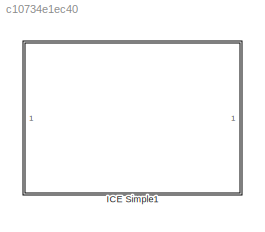
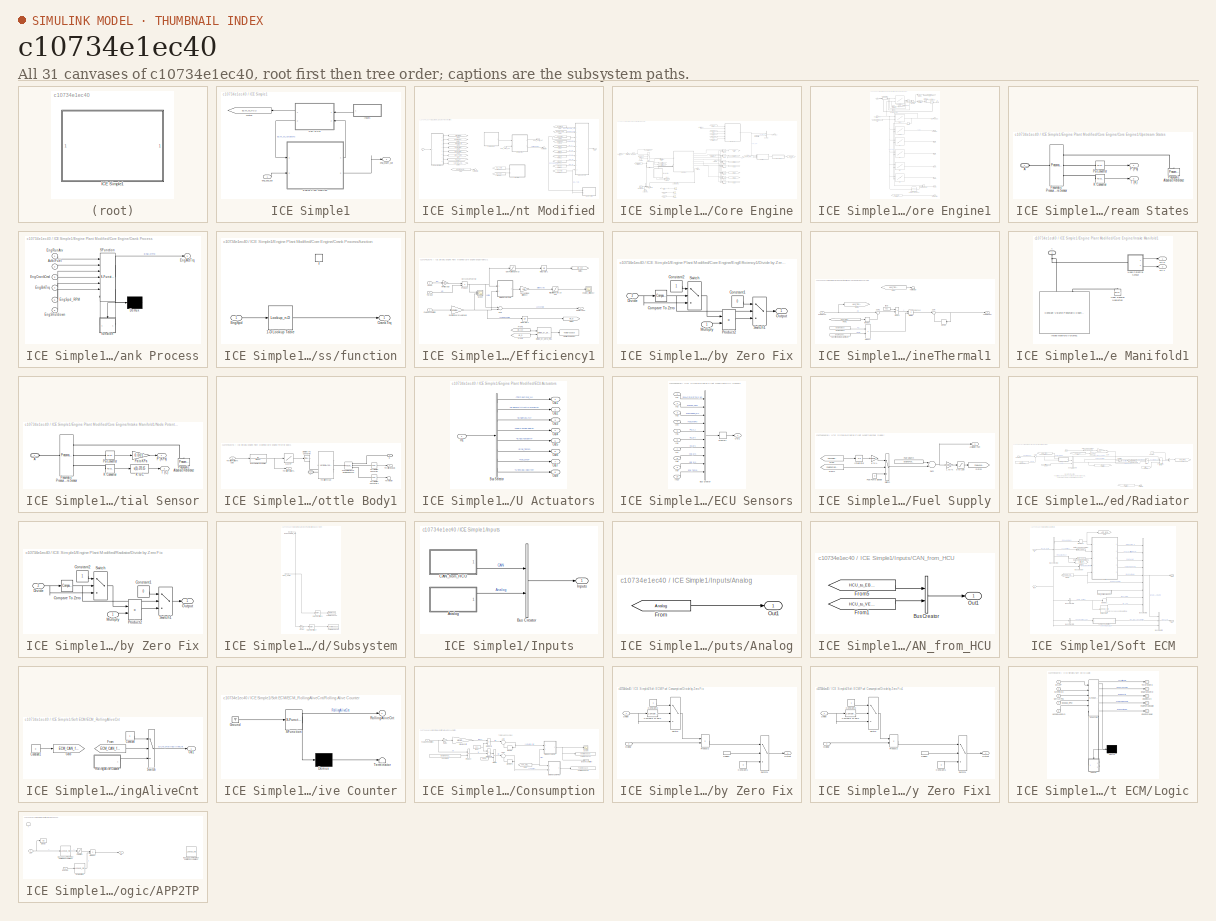
[diagram: thumbnail index - all 31 canvases of the model, root first then tree order]
MODEL slx_c10734e1ec40
KIND library
CONFIG AbsTol = auto
CONFIG EnableMultiTasking = off
CONFIG FixedStep = auto
CONFIG MaxStep = auto
CONFIG MinStep = auto
CONFIG RelTol = 1e-3
CONFIG SampleTimeConstraint = Unconstrained
CONFIG Solver = VariableStepAuto
CONFIG SolverName = VariableStepAuto
CONFIG StartTime = 0.0
CONFIG StopTime = 10.0
BLOCK [SubSystem] ICE Simple1
  Ports = [1, 1]
  RequestExecContextInheritance = off
  Variant = off
BLOCK [SubSystem] ICE Simple1/Engine Plant Modified
  Ports = [2, 2]
  RequestExecContextInheritance = off
  Variant = off
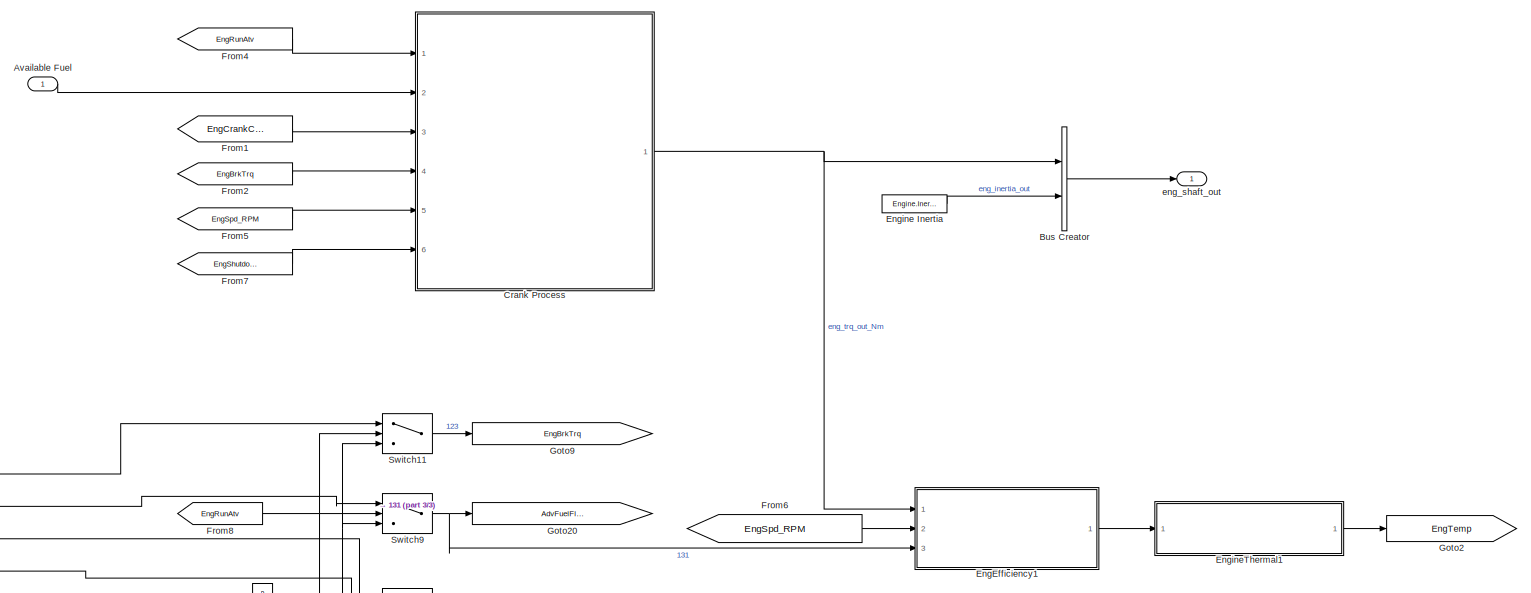
[diagram: ICE Simple1/Engine Plant Modified/Core Engine - part 1/3, top right region]
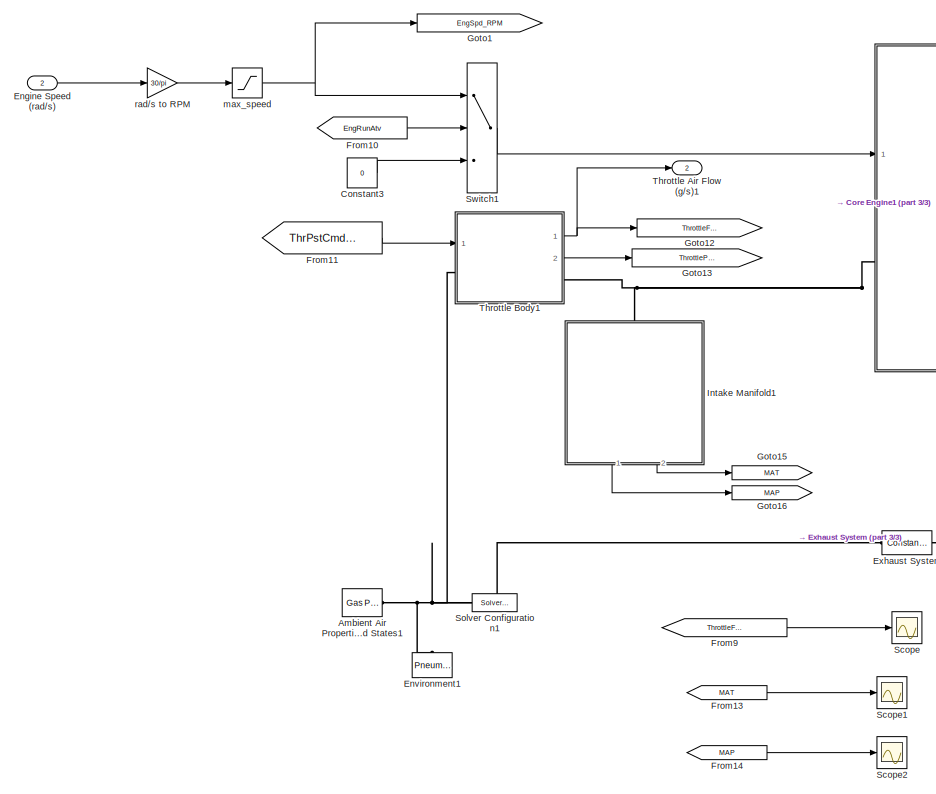
[diagram: ICE Simple1/Engine Plant Modified/Core Engine - part 2/3, bottom left region]
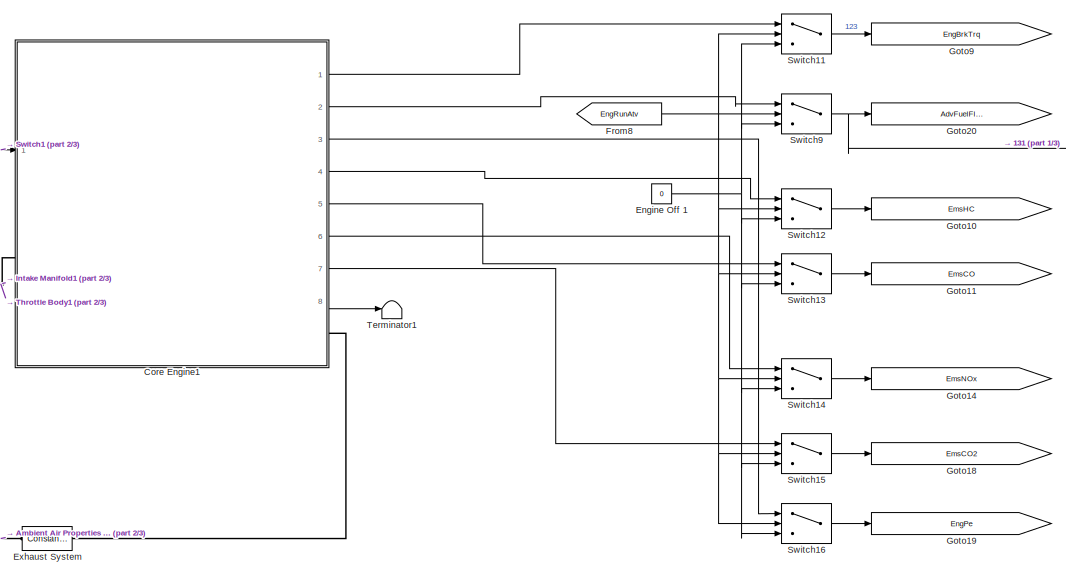
[diagram: ICE Simple1/Engine Plant Modified/Core Engine - part 3/3, central region]
BLOCK [SubSystem] ICE Simple1/Engine Plant Modified/Core Engine
  Ports = [2, 2]
  RequestExecContextInheritance = off
  Variant = off
BLOCK [Reference] ICE Simple1/Engine Plant Modified/Core Engine/Ambient Air Properties and States1  REF=Pneumatic_lib/Pneumatic Utilities/Gas Properties
  Ports = [0, 0, 0, 0, 0, 0, 1]
  SourceBlock = Pneumatic_lib/Pneumatic Utilities/Gas Properties
  SourceType = Gas Properties
BLOCK [Inport] ICE Simple1/Engine Plant Modified/Core Engine/Available Fuel
  IconDisplay = Port number
BLOCK [BusCreator] ICE Simple1/Engine Plant Modified/Core Engine/Bus Creator
  DisplayOption = bar
  InheritFromInputs = on
  Inputs = 2
  Ports = [2, 1]
BLOCK [Constant] ICE Simple1/Engine Plant Modified/Core Engine/Constant3
  Value = 0
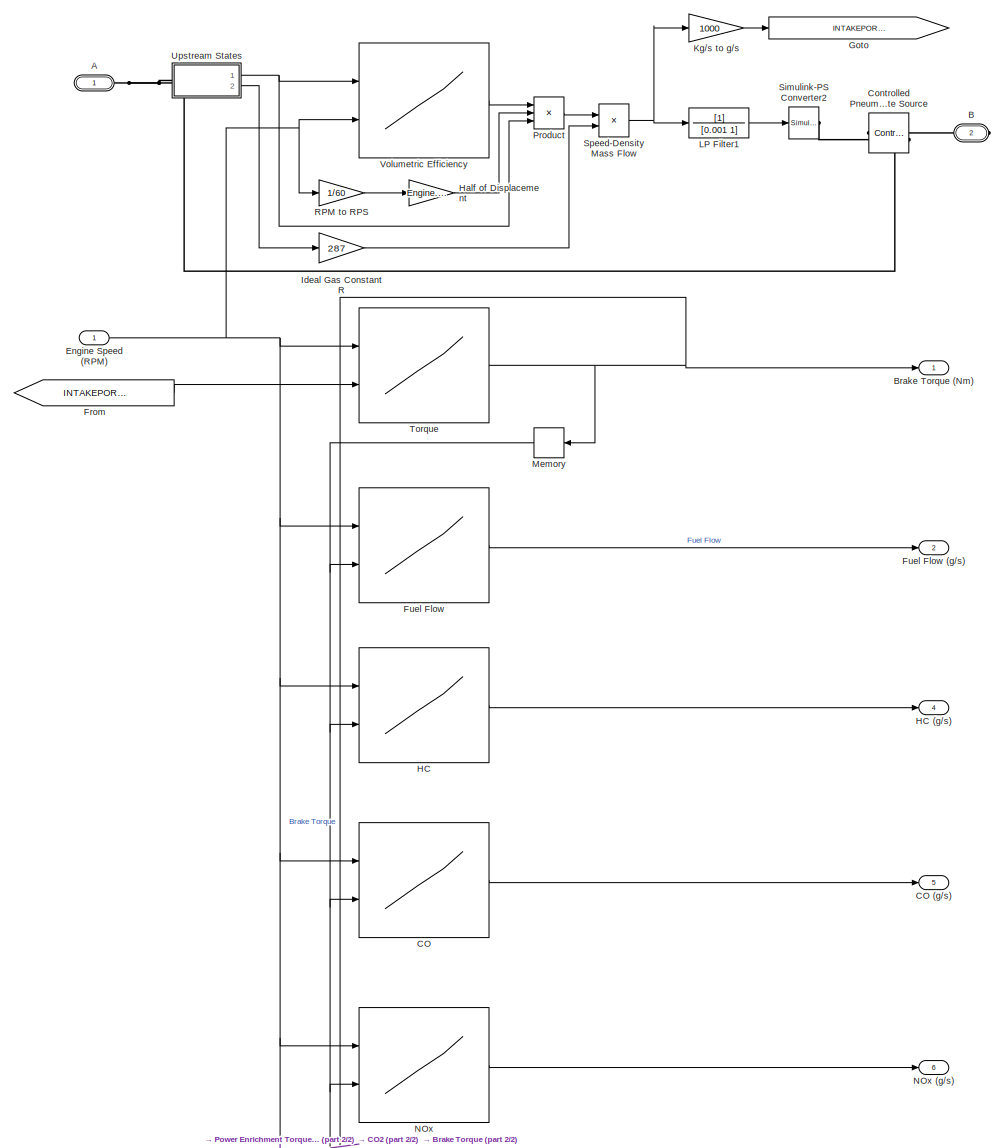
[diagram: ICE Simple1/Engine Plant Modified/Core Engine/Core Engine1 - part 1/2, most of the canvas]
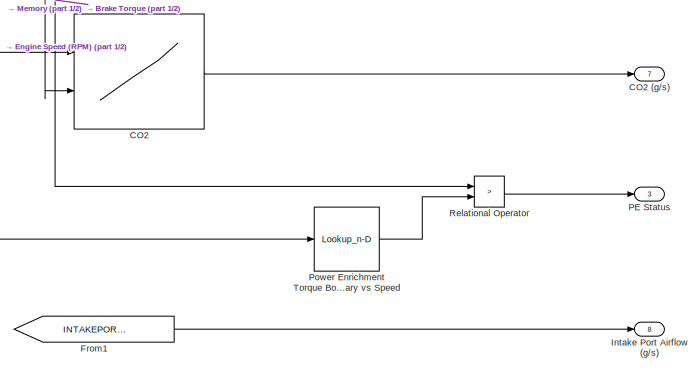
[diagram: ICE Simple1/Engine Plant Modified/Core Engine/Core Engine1 - part 2/2, bottom center region]
BLOCK [SubSystem] ICE Simple1/Engine Plant Modified/Core Engine/Core Engine1
  Ports = [1, 8, 0, 0, 0, 1, 1]
  RequestExecContextInheritance = off
  Variant = off
BLOCK [PMIOPort] ICE Simple1/Engine Plant Modified/Core Engine/Core Engine1/A
  Port = 1
  Side = Left
BLOCK [PMIOPort] ICE Simple1/Engine Plant Modified/Core Engine/Core Engine1/B
  Port = 2
  Side = Right
BLOCK [Outport] ICE Simple1/Engine Plant Modified/Core Engine/Core Engine1/Brake Torque (Nm)
  IconDisplay = Port number
BLOCK [Lookup2D] ICE Simple1/Engine Plant Modified/Core Engine/Core Engine1/CO
  ColumnIndex = Engine.Engine.Emissions.TQ
  InputSameDT = off
  LookUpMeth = Interpolation-Use End Values
  RowIndex = Engine.Engine.Emissions.SPEED
  SaturateOnIntegerOverflow = off
  Table = Engine.Engine.Emissions.CO/1000
BLOCK [Outport] ICE Simple1/Engine Plant Modified/Core Engine/Core Engine1/CO (g//s)
  IconDisplay = Port number
  Port = 5
BLOCK [Lookup2D] ICE Simple1/Engine Plant Modified/Core Engine/Core Engine1/CO2
  ColumnIndex = Engine.Engine.Emissions.TQ
  InputSameDT = off
  LookUpMeth = Interpolation-Use End Values
  RowIndex = Engine.Engine.Emissions.SPEED
  SaturateOnIntegerOverflow = off
  Table = Engine.Engine.Emissions.CO2/1000
BLOCK [Outport] ICE Simple1/Engine Plant Modified/Core Engine/Core Engine1/CO2 (g//s)
  IconDisplay = Port number
  Port = 7
BLOCK [Reference] ICE Simple1/Engine Plant Modified/Core Engine/Core Engine1/Controlled Pneumatic Flow Rate Source  REF=Pneumatic_lib/Pneumatic Sources/Controlled Pneumatic
Flow Rate Source
  Ports = [0, 0, 0, 0, 0, 1, 2]
  SourceBlock = Pneumatic_lib/Pneumatic Sources/Controlled Pneumatic\nFlow Rate Source
  SourceType = Controlled Pneumatic\nFlow Rate Source
BLOCK [Inport] ICE Simple1/Engine Plant Modified/Core Engine/Core Engine1/Engine Speed (RPM)
  IconDisplay = Port number
BLOCK [From] ICE Simple1/Engine Plant Modified/Core Engine/Core Engine1/From
  GotoTag = INTAKEPORTFLOW
BLOCK [From] ICE Simple1/Engine Plant Modified/Core Engine/Core Engine1/From1
  GotoTag = INTAKEPORTFLOW
BLOCK [Lookup2D] ICE Simple1/Engine Plant Modified/Core Engine/Core Engine1/Fuel Flow
  ColumnIndex = Engine.Engine.FuelFlow.TQ
  InputSameDT = off
  LookUpMeth = Interpolation-Use End Values
  RowIndex = Engine.Engine.FuelFlow.SPEED
  SaturateOnIntegerOverflow = off
  Table = Engine.Engine.FuelFlow.FuelFlow
BLOCK [Outport] ICE Simple1/Engine Plant Modified/Core Engine/Core Engine1/Fuel Flow (g//s)
  IconDisplay = Port number
  Port = 2
BLOCK [Goto] ICE Simple1/Engine Plant Modified/Core Engine/Core Engine1/Goto
  GotoTag = INTAKEPORTFLOW
BLOCK [Lookup2D] ICE Simple1/Engine Plant Modified/Core Engine/Core Engine1/HC
  ColumnIndex = Engine.Engine.Emissions.TQ
  InputSameDT = off
  LookUpMeth = Interpolation-Use End Values
  RowIndex = Engine.Engine.Emissions.SPEED
  SaturateOnIntegerOverflow = off
  Table = Engine.Engine.Emissions.HC/1000
BLOCK [Outport] ICE Simple1/Engine Plant Modified/Core Engine/Core Engine1/HC (g//s)
  IconDisplay = Port number
  Port = 4
BLOCK [Gain] ICE Simple1/Engine Plant Modified/Core Engine/Core Engine1/Half of Displacement
  Gain = Engine.DisplacedVolume/(2*1000)
  OutDataTypeStr = Inherit: Inherit via internal rule
  ParamDataTypeStr = Inherit: Inherit via internal rule
  SaturateOnIntegerOverflow = off
BLOCK [Gain] ICE Simple1/Engine Plant Modified/Core Engine/Core Engine1/Ideal Gas Constant R
  Gain = 287
  OutDataTypeStr = Inherit: Inherit via internal rule
  ParamDataTypeStr = Inherit: Inherit via internal rule
  SaturateOnIntegerOverflow = off
BLOCK [Outport] ICE Simple1/Engine Plant Modified/Core Engine/Core Engine1/Intake Port Airflow (g//s)
  IconDisplay = Port number
  Port = 8
BLOCK [Gain] ICE Simple1/Engine Plant Modified/Core Engine/Core Engine1/Kg//s to g//s
  Gain = 1000
  OutDataTypeStr = Inherit: Inherit via internal rule
  ParamDataTypeStr = Inherit: Inherit via internal rule
  SaturateOnIntegerOverflow = off
BLOCK [TransferFcn] ICE Simple1/Engine Plant Modified/Core Engine/Core Engine1/LP Filter1
  Denominator = [0.001 1]
BLOCK [Memory] ICE Simple1/Engine Plant Modified/Core Engine/Core Engine1/Memory
BLOCK [Lookup2D] ICE Simple1/Engine Plant Modified/Core Engine/Core Engine1/NOx
  ColumnIndex = Engine.Engine.Emissions.TQ
  InputSameDT = off
  LookUpMeth = Interpolation-Use End Values
  RowIndex = Engine.Engine.Emissions.SPEED
  SaturateOnIntegerOverflow = off
  Table = Engine.Engine.Emissions.NOx/1000
BLOCK [Outport] ICE Simple1/Engine Plant Modified/Core Engine/Core Engine1/NOx (g//s)
  IconDisplay = Port number
  Port = 6
BLOCK [Outport] ICE Simple1/Engine Plant Modified/Core Engine/Core Engine1/PE Status
  IconDisplay = Port number
  Port = 3
BLOCK [Lookup_n-D] ICE Simple1/Engine Plant Modified/Core Engine/Core Engine1/Power Enrichment Torque Boundary vs Speed
  BreakpointsForDimension1 = Engine.Engine.PEBound.SPEED
  ExtrapMethod = Clip
  InternalRulePriority = Speed
  NumberOfTableDimensions = 1
  Ports = [1, 1]
  RndMeth = Simplest
  Table = Engine.Engine.PEBound.PEBound
BLOCK [Product] ICE Simple1/Engine Plant Modified/Core Engine/Core Engine1/Product
  InputSameDT = off
  Inputs = ***
  OutDataTypeStr = Inherit: Inherit via internal rule
  Ports = [3, 1]
  RndMeth = Floor
  SaturateOnIntegerOverflow = off
BLOCK [Gain] ICE Simple1/Engine Plant Modified/Core Engine/Core Engine1/RPM to RPS
  Gain = 1/60
  OutDataTypeStr = Inherit: Inherit via internal rule
  ParamDataTypeStr = Inherit: Inherit via internal rule
  SaturateOnIntegerOverflow = off
BLOCK [RelationalOperator] ICE Simple1/Engine Plant Modified/Core Engine/Core Engine1/Relational Operator
  InputSameDT = off
  Operator = >
  OutDataTypeStr = boolean
  Ports = [2, 1]
BLOCK [Reference] ICE Simple1/Engine Plant Modified/Core Engine/Core Engine1/Simulink-PS Converter2  REF=nesl_utility/Simulink-PS
Converter
  AttributesFormatString = %<Unit>
  Ports = [1, 0, 0, 0, 0, 0, 1]
  SourceBlock = nesl_utility/Simulink-PS\nConverter
  SourceProductBaseCode = SS
  SourceProductName = Simscape
  SourceType = Simulink-PS\nConverter
BLOCK [Product] ICE Simple1/Engine Plant Modified/Core Engine/Core Engine1/Speed-Density Mass Flow
  InputSameDT = off
  Inputs = */
  OutDataTypeStr = Inherit: Inherit via internal rule
  Ports = [2, 1]
  RndMeth = Floor
  SaturateOnIntegerOverflow = off
BLOCK [Lookup2D] ICE Simple1/Engine Plant Modified/Core Engine/Core Engine1/Torque
  ColumnIndex = Engine.Engine.TQ.MAF
  InputSameDT = off
  LookUpMeth = Interpolation-Use End Values
  RowIndex = Engine.Engine.TQ.SPEED
  SaturateOnIntegerOverflow = off
  Table = Engine.Engine.TQ.TQ
BLOCK [SubSystem] ICE Simple1/Engine Plant Modified/Core Engine/Core Engine1/Upstream States
  Ports = [0, 2, 0, 0, 0, 1]
  RequestExecContextInheritance = off
  Variant = off
BLOCK [PMIOPort] ICE Simple1/Engine Plant Modified/Core Engine/Core Engine1/Upstream States/A
  Port = 1
  Side = Left
BLOCK [Reference] ICE Simple1/Engine Plant Modified/Core Engine/Core Engine1/Upstream States/K Converter  REF=nesl_utility/PS-Simulink
Converter
  Ports = [0, 1, 0, 0, 0, 1]
  SourceBlock = nesl_utility/PS-Simulink\nConverter
  SourceProductBaseCode = SS
  SourceProductName = Simscape
  SourceType = PS-Simulink\nConverter
BLOCK [Outport] ICE Simple1/Engine Plant Modified/Core Engine/Core Engine1/Upstream States/P (Pa)
  IconDisplay = Port number
BLOCK [Reference] ICE Simple1/Engine Plant Modified/Core Engine/Core Engine1/Upstream States/Pa Converter  REF=nesl_utility/PS-Simulink
Converter
  Ports = [0, 1, 0, 0, 0, 1]
  SourceBlock = nesl_utility/PS-Simulink\nConverter
  SourceProductBaseCode = SS
  SourceProductName = Simscape
  SourceType = PS-Simulink\nConverter
BLOCK [Reference] ICE Simple1/Engine Plant Modified/Core Engine/Core Engine1/Upstream States/Pneumatic Absolute Reference  REF=Pneumatic_lib/Pneumatic Elements/Pneumatic Absolute
Reference
  Ports = [0, 0, 0, 0, 0, 1]
  SourceBlock = Pneumatic_lib/Pneumatic Elements/Pneumatic Absolute\nReference
  SourceType = Pneumatic Absolute\nReference
BLOCK [Reference] ICE Simple1/Engine Plant Modified/Core Engine/Core Engine1/Upstream States/Pneumatic Pressure & Temperature Sensor  REF=Pneumatic_lib/Pneumatic Sensors/Pneumatic Pressure &
Temperature Sensor
  Ports = [0, 0, 0, 0, 0, 1, 3]
  SourceBlock = Pneumatic_lib/Pneumatic Sensors/Pneumatic Pressure &\nTemperature Sensor
  SourceType = Pneumatic Pressure &\nTemperature Sensor
BLOCK [Outport] ICE Simple1/Engine Plant Modified/Core Engine/Core Engine1/Upstream States/T (K)
  IconDisplay = Port number
  Port = 2
BLOCK [Lookup2D] ICE Simple1/Engine Plant Modified/Core Engine/Core Engine1/Volumetric Efficiency
  ColumnIndex = Engine.Engine.VE.SPEED
  InputSameDT = off
  LookUpMeth = Interpolation-Use End Values
  RowIndex = Engine.Engine.VE.MAP
  SaturateOnIntegerOverflow = off
  Table = Engine.Engine.VE.VE
BLOCK [SubSystem] ICE Simple1/Engine Plant Modified/Core Engine/Crank Process
  ErrorFcn = Stateflow.Translate.translate
  PermitHierarchicalResolution = ExplicitOnly
  Ports = [6, 1]
  RequestExecContextInheritance = off
  SFBlockType = Chart
  TreatAsAtomicUnit = on
  Variant = off
BLOCK [Demux] ICE Simple1/Engine Plant Modified/Core Engine/Crank Process/ Demux 
  Outputs = 1
  Ports = [1, 1]
BLOCK [S-Function] ICE Simple1/Engine Plant Modified/Core Engine/Crank Process/ SFunction 
  EnableBusSupport = off
  FunctionName = sf_sfun
  PortCounts = [7 3]
  Ports = [7, 3]
  SFcnIsStateOwnerBlock = off
  SFunctionDeploymentMode = off
  Tag = Stateflow S-Function lib_Engine 14
BLOCK [Inport] ICE Simple1/Engine Plant Modified/Core Engine/Crank Process/AvlblFuel
  IconDisplay = Port number
  Port = 2
BLOCK [Outport] ICE Simple1/Engine Plant Modified/Core Engine/Crank Process/EngActTrq
  IconDisplay = Port number
BLOCK [Inport] ICE Simple1/Engine Plant Modified/Core Engine/Crank Process/EngBrkTrq
  IconDisplay = Port number
  Port = 4
BLOCK [Inport] ICE Simple1/Engine Plant Modified/Core Engine/Crank Process/EngCrankCmd
  IconDisplay = Port number
  Port = 3
BLOCK [Inport] ICE Simple1/Engine Plant Modified/Core Engine/Crank Process/EngRunAtv
  IconDisplay = Port number
BLOCK [Inport] ICE Simple1/Engine Plant Modified/Core Engine/Crank Process/EngShutdown
  IconDisplay = Port number
  Port = 6
BLOCK [Inport] ICE Simple1/Engine Plant Modified/Core Engine/Crank Process/EngSpd_RPM
  IconDisplay = Port number
  Port = 5
BLOCK [SubSystem] ICE Simple1/Engine Plant Modified/Core Engine/Crank Process/function
  Ports = [1, 1, 0, 1]
  PreDeleteFcn = Stateflow.SLINSF.SimulinkMan.removePreDeleteFcn
  RequestExecContextInheritance = off
  UndoDeleteFcn = Stateflow.SLINSF.SimulinkMan.restorePreDeleteFcn
  Variant = off
BLOCK [Lookup_n-D] ICE Simple1/Engine Plant Modified/Core Engine/Crank Process/function/1-D Lookup Table
  BreakpointsForDimension1 = [0 50 120 210 300 320 340 350 400]
  InternalRulePriority = Speed
  NumberOfTableDimensions = 1
  Ports = [1, 1]
  RndMeth = Simplest
  Table = [90 90 90 10 5 5  5 5 5]
BLOCK [Outport] ICE Simple1/Engine Plant Modified/Core Engine/Crank Process/function/CrankTrq
  IconDisplay = Port number
BLOCK [Inport] ICE Simple1/Engine Plant Modified/Core Engine/Crank Process/function/EngSpd
  IconDisplay = Port number
BLOCK [TriggerPort] ICE Simple1/Engine Plant Modified/Core Engine/Crank Process/function/f
  CopyFcn = Stateflow.SLINSF.SimulinkMan.removeBlockPreDeleteFcn
  Ports = []
  PreDeleteFcn = Stateflow.SLINSF.SimulinkMan.unsafePredeleteFcn
  StatesWhenEnabling = held
  TriggerType = function-call
  VariantControl = Variant
BLOCK [SubSystem] ICE Simple1/Engine Plant Modified/Core Engine/EngEfficiency1
  Ports = [3, 1]
  RequestExecContextInheritance = off
  Variant = off
BLOCK [SubSystem] ICE Simple1/Engine Plant Modified/Core Engine/EngEfficiency1/Divide by Zero Fix
  Ports = [2, 1]
  RequestExecContextInheritance = off
  Variant = off
BLOCK [Reference] ICE Simple1/Engine Plant Modified/Core Engine/EngEfficiency1/Divide by Zero Fix/Compare To Zero  REF=simulink/Logic and Bit
Operations/Compare
To Zero
  Ports = [1, 1]
  SourceBlock = simulink/Logic and Bit\nOperations/Compare\nTo Zero
  SourceProductBaseCode = SL
  SourceProductName = Simulink
  SourceType = Compare To Zero
BLOCK [Constant] ICE Simple1/Engine Plant Modified/Core Engine/EngEfficiency1/Divide by Zero Fix/Constant1
  Value = 0
BLOCK [Constant] ICE Simple1/Engine Plant Modified/Core Engine/EngEfficiency1/Divide by Zero Fix/Constant2
BLOCK [Inport] ICE Simple1/Engine Plant Modified/Core Engine/EngEfficiency1/Divide by Zero Fix/Divide
  IconDisplay = Port number
  Port = 2
BLOCK [Inport] ICE Simple1/Engine Plant Modified/Core Engine/EngEfficiency1/Divide by Zero Fix/Multiply
  IconDisplay = Port number
BLOCK [Outport] ICE Simple1/Engine Plant Modified/Core Engine/EngEfficiency1/Divide by Zero Fix/Output
  IconDisplay = Port number
BLOCK [Product] ICE Simple1/Engine Plant Modified/Core Engine/EngEfficiency1/Divide by Zero Fix/Product2
  Inputs = /*
  Ports = [2, 1]
  RndMeth = Floor
BLOCK [Switch] ICE Simple1/Engine Plant Modified/Core Engine/EngEfficiency1/Divide by Zero Fix/Switch
  InputSameDT = off
  SaturateOnIntegerOverflow = off
  Threshold = 1
BLOCK [Switch] ICE Simple1/Engine Plant Modified/Core Engine/EngEfficiency1/Divide by Zero Fix/Switch1
  InputSameDT = off
  SaturateOnIntegerOverflow = off
  Threshold = 1
BLOCK [Reference] ICE Simple1/Engine Plant Modified/Core Engine/EngEfficiency1/Divide_by_Zero_Fix1  REF=EC2_libraries/Divide_by_Zero_Fix
  Commented = on
  Ports = [2, 1]
  SourceBlock = EC2_libraries/Divide_by_Zero_Fix
  SourceType = SubSystem
BLOCK [From] ICE Simple1/Engine Plant Modified/Core Engine/EngEfficiency1/From1
  Commented = on
  GotoTag = Wh_out
BLOCK [From] ICE Simple1/Engine Plant Modified/Core Engine/EngEfficiency1/From2
  Commented = on
  GotoTag = Wh_in
BLOCK [Inport] ICE Simple1/Engine Plant Modified/Core Engine/EngEfficiency1/Fuel Consumption
  IconDisplay = Port number
  Port = 3
BLOCK [Goto] ICE Simple1/Engine Plant Modified/Core Engine/EngEfficiency1/Goto1
  Commented = on
  GotoTag = Wh_out
BLOCK [Goto] ICE Simple1/Engine Plant Modified/Core Engine/EngEfficiency1/Goto2
  Commented = on
  GotoTag = Wh_in
BLOCK [Integrator] ICE Simple1/Engine Plant Modified/Core Engine/EngEfficiency1/Integrator1
  Commented = on
  LimitOutput = on
  LowerSaturationLimit = 0
  Ports = [1, 1]
BLOCK [Integrator] ICE Simple1/Engine Plant Modified/Core Engine/EngEfficiency1/Integrator2
  Commented = on
  LimitOutput = on
  LowerSaturationLimit = 0
  Ports = [1, 1]
BLOCK [Saturate] ICE Simple1/Engine Plant Modified/Core Engine/EngEfficiency1/OnlyPositiveEnergy
  Commented = on
  InputPortMap = u0
  LowerLimit = 0
  Ports = [1, 1]
  UpperLimit = inf
BLOCK [Gain] ICE Simple1/Engine Plant Modified/Core Engine/EngEfficiency1/Percentage Efficiency
  Gain = 100
  OutDataTypeStr = Inherit: Inherit via internal rule
  ParamDataTypeStr = Inherit: Inherit via internal rule
  SaturateOnIntegerOverflow = off
BLOCK [Outport] ICE Simple1/Engine Plant Modified/Core Engine/EngEfficiency1/PowerLoss
  IconDisplay = Port number
BLOCK [Product] ICE Simple1/Engine Plant Modified/Core Engine/EngEfficiency1/Product
  InputSameDT = off
  OutDataTypeStr = Inherit: Inherit via internal rule
  Ports = [2, 1]
  SaturateOnIntegerOverflow = off
BLOCK [Gain] ICE Simple1/Engine Plant Modified/Core Engine/EngEfficiency1/RPM to rad//s 
  Gain = pi/30
  OutDataTypeStr = Inherit: Inherit via internal rule
  ParamDataTypeStr = Inherit: Inherit via internal rule
  SaturateOnIntegerOverflow = off
BLOCK [Scope] ICE Simple1/Engine Plant Modified/Core Engine/EngEfficiency1/Scope
  NumInputPorts = 2
  Ports = [2]
  ScopeSpecificationString = Simulink.scopes.TimeScopeBlockCfg('CurrentConfiguration', extmgr.ConfigurationSet(extmgr.Configuration('Core','General UI',true),extmgr.Configuration('Core','Source UI',true),extmgr.Configuration('Sources','WiredSimulink',true,'DataLoggingVariableName','ScopeData1'),extmgr.Configuration('Visuals','Time Domain',true,'SerializedDisplays',{struct('MinYLimReal','-26916.34716','MaxYLimReal','176452.438...<+1462ch>
BLOCK [Gain] ICE Simple1/Engine Plant Modified/Core Engine/EngEfficiency1/Specific Energy LHV in J//kg
  Gain = Engine.Fuel.Lower_Heating_Value/1000
  OutDataTypeStr = Inherit: Inherit via internal rule
  ParamDataTypeStr = Inherit: Inherit via internal rule
  SaturateOnIntegerOverflow = off
BLOCK [Inport] ICE Simple1/Engine Plant Modified/Core Engine/EngEfficiency1/Speed
  IconDisplay = Port number
  Port = 2
BLOCK [Sum] ICE Simple1/Engine Plant Modified/Core Engine/EngEfficiency1/Sum
  InputSameDT = off
  Inputs = -+
  OutDataTypeStr = Inherit: Inherit via internal rule
  Ports = [2, 1]
  SaturateOnIntegerOverflow = off
BLOCK [ToWorkspace] ICE Simple1/Engine Plant Modified/Core Engine/EngEfficiency1/To Workspace7
  Commented = on
  Decimation = WORKSPACE_DECIMATION
  MaxDataPoints = inf
  Ports = [1]
  SampleTime = -1
  VariableName = eng_Wh_pos_eff_hist
BLOCK [Inport] ICE Simple1/Engine Plant Modified/Core Engine/EngEfficiency1/Torque
  IconDisplay = Port number
BLOCK [Scope] ICE Simple1/Engine Plant Modified/Core Engine/EngEfficiency1/engine_efficiency
  NumInputPorts = 1
  Ports = [1]
  ScopeSpecificationString = Simulink.scopes.TimeScopeBlockCfg('CurrentConfiguration', extmgr.ConfigurationSet(extmgr.Configuration('Core','General UI',true),extmgr.Configuration('Core','Source UI',true),extmgr.Configuration('Sources','WiredSimulink',true,'DataLoggingVariableName','ScopeData2'),extmgr.Configuration('Visuals','Time Domain',true,'SerializedDisplays',{struct('MinYLimReal','-4.85526','MaxYLimReal','43.69735','YLa...<+1442ch>
BLOCK [Saturate] ICE Simple1/Engine Plant Modified/Core Engine/EngEfficiency1/limit_efficiency[0-100%]
  InputPortMap = u0
  LowerLimit = 0
  Ports = [1, 1]
  UpperLimit = 100
BLOCK [Constant] ICE Simple1/Engine Plant Modified/Core Engine/Engine Inertia
  Value = Engine.Inertia
BLOCK [Constant] ICE Simple1/Engine Plant Modified/Core Engine/Engine Off  1
  Value = 0
BLOCK [Inport] ICE Simple1/Engine Plant Modified/Core Engine/Engine Speed (rad//s)
  IconDisplay = Port number
  Port = 2
BLOCK [SubSystem] ICE Simple1/Engine Plant Modified/Core Engine/EngineThermal1
  Ports = [1, 1]
  RequestExecContextInheritance = off
  Variant = off
BLOCK [Product] ICE Simple1/Engine Plant Modified/Core Engine/EngineThermal1/Divide
  InputSameDT = off
  Inputs = */
  OutDataTypeStr = Inherit: Inherit via internal rule
  Ports = [2, 1]
  RndMeth = Floor
  SaturateOnIntegerOverflow = off
BLOCK [Product] ICE Simple1/Engine Plant Modified/Core Engine/EngineThermal1/Divide1
  InputSameDT = off
  Inputs = **
  OutDataTypeStr = Inherit: Inherit via internal rule
  Ports = [2, 1]
  RndMeth = Floor
  SaturateOnIntegerOverflow = off
BLOCK [Constant] ICE Simple1/Engine Plant Modified/Core Engine/EngineThermal1/Engine Mass
  Value = Engine.Mass
BLOCK [From] ICE Simple1/Engine Plant Modified/Core Engine/EngineThermal1/From
  GotoTag = Heat_Transfer_Eng
  TagVisibility = global
BLOCK [From] ICE Simple1/Engine Plant Modified/Core Engine/EngineThermal1/From1
  GotoTag = Heat_Reject_Eng
  TagVisibility = global
BLOCK [Goto] ICE Simple1/Engine Plant Modified/Core Engine/EngineThermal1/Goto2
  GotoTag = Heat_Transfer_Eng
  TagVisibility = global
BLOCK [Memory] ICE Simple1/Engine Plant Modified/Core Engine/EngineThermal1/Memory
  InitialCondition = Engine.Init_T_amb
BLOCK [Memory] ICE Simple1/Engine Plant Modified/Core Engine/EngineThermal1/Memory1
BLOCK [Inport] ICE Simple1/Engine Plant Modified/Core Engine/EngineThermal1/PowerLoss
  IconDisplay = Port number
BLOCK [Product] ICE Simple1/Engine Plant Modified/Core Engine/EngineThermal1/Product
  InputSameDT = off
  OutDataTypeStr = Inherit: Inherit via internal rule
  Ports = [2, 1]
  SaturateOnIntegerOverflow = off
BLOCK [Constant] ICE Simple1/Engine Plant Modified/Core Engine/EngineThermal1/Specific Heat Cap Aluminum
  Value = Engine.Specific_Heat
BLOCK [Sum] ICE Simple1/Engine Plant Modified/Core Engine/EngineThermal1/Sum
  IconShape = round
  InputSameDT = off
  Inputs = |++
  OutDataTypeStr = Inherit: Inherit via internal rule
  Ports = [2, 1]
  SaturateOnIntegerOverflow = off
BLOCK [Sum] ICE Simple1/Engine Plant Modified/Core Engine/EngineThermal1/Sum1
  IconShape = round
  InputSameDT = off
  Inputs = |+-
  OutDataTypeStr = Inherit: Inherit via internal rule
  Ports = [2, 1]
  SaturateOnIntegerOverflow = off
BLOCK [Outport] ICE Simple1/Engine Plant Modified/Core Engine/EngineThermal1/Temp[degC]
  IconDisplay = Port number
BLOCK [Terminator] ICE Simple1/Engine Plant Modified/Core Engine/EngineThermal1/Terminator
BLOCK [Constant] ICE Simple1/Engine Plant Modified/Core Engine/EngineThermal1/tloop
  Value = 0.01
BLOCK [Reference] ICE Simple1/Engine Plant Modified/Core Engine/Environment1  REF=Pneumatic_lib/Pneumatic Elements/Pneumatic
Atmospheric
Reference
  Ports = [0, 0, 0, 0, 0, 1]
  SourceBlock = Pneumatic_lib/Pneumatic Elements/Pneumatic\nAtmospheric\nReference
  SourceType = Pneumatic\nAtmospheric\nReference
BLOCK [Reference] ICE Simple1/Engine Plant Modified/Core Engine/Exhaust System  REF=Pneumatic_lib/Pneumatic Elements/Constant Area
Pneumatic Orifice
  Ports = [0, 0, 0, 0, 0, 1, 1]
  SourceBlock = Pneumatic_lib/Pneumatic Elements/Constant Area\nPneumatic Orifice
  SourceType = Constant Area\nPneumatic Orifice
BLOCK [From] ICE Simple1/Engine Plant Modified/Core Engine/From1
  GotoTag = EngCrankCmd
  TagVisibility = global
BLOCK [From] ICE Simple1/Engine Plant Modified/Core Engine/From10
  GotoTag = EngRunAtv
  TagVisibility = global
BLOCK [From] ICE Simple1/Engine Plant Modified/Core Engine/From11
  GotoTag = ThrPstCmd_pct
  TagVisibility = global
BLOCK [From] ICE Simple1/Engine Plant Modified/Core Engine/From13
  GotoTag = MAT
  TagVisibility = global
BLOCK [From] ICE Simple1/Engine Plant Modified/Core Engine/From14
  GotoTag = MAP
  TagVisibility = global
BLOCK [From] ICE Simple1/Engine Plant Modified/Core Engine/From2
  GotoTag = EngBrkTrq
  TagVisibility = global
BLOCK [From] ICE Simple1/Engine Plant Modified/Core Engine/From4
  GotoTag = EngRunAtv
  TagVisibility = global
BLOCK [From] ICE Simple1/Engine Plant Modified/Core Engine/From5
  GotoTag = EngSpd_RPM
  TagVisibility = global
BLOCK [From] ICE Simple1/Engine Plant Modified/Core Engine/From6
  GotoTag = EngSpd_RPM
  TagVisibility = global
BLOCK [From] ICE Simple1/Engine Plant Modified/Core Engine/From7
  GotoTag = EngShutdown
  TagVisibility = global
BLOCK [From] ICE Simple1/Engine Plant Modified/Core Engine/From8
  GotoTag = EngRunAtv
  TagVisibility = global
BLOCK [From] ICE Simple1/Engine Plant Modified/Core Engine/From9
  GotoTag = ThrottleFlow
  TagVisibility = global
BLOCK [Goto] ICE Simple1/Engine Plant Modified/Core Engine/Goto1
  GotoTag = EngSpd_RPM
  TagVisibility = global
BLOCK [Goto] ICE Simple1/Engine Plant Modified/Core Engine/Goto10
  GotoTag = EmsHC
  TagVisibility = global
BLOCK [Goto] ICE Simple1/Engine Plant Modified/Core Engine/Goto11
  GotoTag = EmsCO
  TagVisibility = global
BLOCK [Goto] ICE Simple1/Engine Plant Modified/Core Engine/Goto12
  GotoTag = ThrottleFlow
  TagVisibility = global
BLOCK [Goto] ICE Simple1/Engine Plant Modified/Core Engine/Goto13
  GotoTag = ThrottlePosPercent
  TagVisibility = global
BLOCK [Goto] ICE Simple1/Engine Plant Modified/Core Engine/Goto14
  GotoTag = EmsNOx
  TagVisibility = global
BLOCK [Goto] ICE Simple1/Engine Plant Modified/Core Engine/Goto15
  GotoTag = MAT
  TagVisibility = global
BLOCK [Goto] ICE Simple1/Engine Plant Modified/Core Engine/Goto16
  GotoTag = MAP
  TagVisibility = global
BLOCK [Goto] ICE Simple1/Engine Plant Modified/Core Engine/Goto18
  GotoTag = EmsCO2
  TagVisibility = global
BLOCK [Goto] ICE Simple1/Engine Plant Modified/Core Engine/Goto19
  GotoTag = EngPe
  TagVisibility = global
BLOCK [Goto] ICE Simple1/Engine Plant Modified/Core Engine/Goto2
  GotoTag = EngTemp
  TagVisibility = global
BLOCK [Goto] ICE Simple1/Engine Plant Modified/Core Engine/Goto20
  GotoTag = AdvFuelFlowEst
  TagVisibility = global
BLOCK [Goto] ICE Simple1/Engine Plant Modified/Core Engine/Goto9
  GotoTag = EngBrkTrq
  TagVisibility = global
BLOCK [SubSystem] ICE Simple1/Engine Plant Modified/Core Engine/Intake Manifold1
  Ports = [0, 2, 0, 0, 0, 1]
  RequestExecContextInheritance = off
  Variant = off
BLOCK [PMIOPort] ICE Simple1/Engine Plant Modified/Core Engine/Intake Manifold1/A
  Port = 1
  Side = Left
BLOCK [Reference] ICE Simple1/Engine Plant Modified/Core Engine/Intake Manifold1/Heat-Transfer Neglected  REF=fl_lib/Thermal/Thermal Elements/Perfect Insulator
  Ports = [0, 0, 0, 0, 0, 1]
  SourceBlock = fl_lib/Thermal/Thermal Elements/Perfect Insulator
  SourceProductBaseCode = SS
  SourceProductName = Simscape
  SourceType = Perfect Insulator
BLOCK [Reference] ICE Simple1/Engine Plant Modified/Core Engine/Intake Manifold1/Intake Manifold Volume1  REF=Pneumatic_lib/Pneumatic Elements/Constant Volume
Pneumatic Chamber
  Ports = [0, 0, 0, 0, 0, 2]
  SourceBlock = Pneumatic_lib/Pneumatic Elements/Constant Volume\nPneumatic Chamber
  SourceType = Constant Volume\nPneumatic Chamber
BLOCK [Outport] ICE Simple1/Engine Plant Modified/Core Engine/Intake Manifold1/MAP
  IconDisplay = Port number
BLOCK [Outport] ICE Simple1/Engine Plant Modified/Core Engine/Intake Manifold1/MAT
  IconDisplay = Port number
  Port = 2
BLOCK [SubSystem] ICE Simple1/Engine Plant Modified/Core Engine/Intake Manifold1/Node Potential Sensor
  Ports = [0, 2, 0, 0, 0, 1]
  RequestExecContextInheritance = off
  Variant = off
BLOCK [PMIOPort] ICE Simple1/Engine Plant Modified/Core Engine/Intake Manifold1/Node Potential Sensor/A
  Port = 1
  Side = Left
BLOCK [Reference] ICE Simple1/Engine Plant Modified/Core Engine/Intake Manifold1/Node Potential Sensor/K Converter  REF=nesl_utility/PS-Simulink
Converter
  Ports = [0, 1, 0, 0, 0, 1]
  SourceBlock = nesl_utility/PS-Simulink\nConverter
  SourceProductBaseCode = SS
  SourceProductName = Simscape
  SourceType = PS-Simulink\nConverter
BLOCK [Fcn] ICE Simple1/Engine Plant Modified/Core Engine/Intake Manifold1/Node Potential Sensor/K to C
  Expr = u(1)-273.15
BLOCK [Outport] ICE Simple1/Engine Plant Modified/Core Engine/Intake Manifold1/Node Potential Sensor/P (KPa)
  IconDisplay = Port number
BLOCK [Reference] ICE Simple1/Engine Plant Modified/Core Engine/Intake Manifold1/Node Potential Sensor/Pa Converter  REF=nesl_utility/PS-Simulink
Converter
  Ports = [0, 1, 0, 0, 0, 1]
  SourceBlock = nesl_utility/PS-Simulink\nConverter
  SourceProductBaseCode = SS
  SourceProductName = Simscape
  SourceType = PS-Simulink\nConverter
BLOCK [Gain] ICE Simple1/Engine Plant Modified/Core Engine/Intake Manifold1/Node Potential Sensor/Pa to KPa
  Gain = 0.001
  OutDataTypeStr = Inherit: Inherit via internal rule
  ParamDataTypeStr = Inherit: Inherit via internal rule
  SaturateOnIntegerOverflow = off
BLOCK [Reference] ICE Simple1/Engine Plant Modified/Core Engine/Intake Manifold1/Node Potential Sensor/Pneumatic Absolute Reference  REF=Pneumatic_lib/Pneumatic Elements/Pneumatic Absolute
Reference
  Ports = [0, 0, 0, 0, 0, 1]
  SourceBlock = Pneumatic_lib/Pneumatic Elements/Pneumatic Absolute\nReference
  SourceType = Pneumatic Absolute\nReference
BLOCK [Reference] ICE Simple1/Engine Plant Modified/Core Engine/Intake Manifold1/Node Potential Sensor/Pneumatic Pressure & Temperature Sensor  REF=Pneumatic_lib/Pneumatic Sensors/Pneumatic Pressure &
Temperature Sensor
  Ports = [0, 0, 0, 0, 0, 1, 3]
  SourceBlock = Pneumatic_lib/Pneumatic Sensors/Pneumatic Pressure &\nTemperature Sensor
  SourceType = Pneumatic Pressure &\nTemperature Sensor
BLOCK [Outport] ICE Simple1/Engine Plant Modified/Core Engine/Intake Manifold1/Node Potential Sensor/T (C)
  IconDisplay = Port number
  Port = 2
BLOCK [Scope] ICE Simple1/Engine Plant Modified/Core Engine/Scope
  NumInputPorts = 1
  Ports = [1]
  ScopeSpecificationString = Simulink.scopes.TimeScopeBlockCfg('CurrentConfiguration', extmgr.ConfigurationSet(extmgr.Configuration('Core','General UI',true),extmgr.Configuration('Core','Source UI',true),extmgr.Configuration('Sources','WiredSimulink',true,'DataLoggingVariableName','ScopeData5'),extmgr.Configuration('Visuals','Time Domain',true,'SerializedDisplays',{struct('MinYLimReal','-18.48345','MaxYLimReal','166.35101','Y...<+1456ch>
BLOCK [Scope] ICE Simple1/Engine Plant Modified/Core Engine/Scope1
  NumInputPorts = 1
  Ports = [1]
  ScopeSpecificationString = Simulink.scopes.TimeScopeBlockCfg('CurrentConfiguration', extmgr.ConfigurationSet(extmgr.Configuration('Core','General UI',true),extmgr.Configuration('Core','Source UI',true),extmgr.Configuration('Sources','WiredSimulink',true,'DataLoggingVariableName','ScopeData1'),extmgr.Configuration('Visuals','Time Domain',true,'SerializedDisplays',{struct('MinYLimReal','-296.79872','MaxYLimReal','139.68849','...<+1443ch>
BLOCK [Scope] ICE Simple1/Engine Plant Modified/Core Engine/Scope2
  NumInputPorts = 1
  Ports = [1]
  ScopeSpecificationString = Simulink.scopes.TimeScopeBlockCfg('CurrentConfiguration', extmgr.ConfigurationSet(extmgr.Configuration('Core','General UI',true),extmgr.Configuration('Core','Source UI',true),extmgr.Configuration('Sources','WiredSimulink',true,'DataLoggingVariableName','ScopeData2'),extmgr.Configuration('Visuals','Time Domain',true,'SerializedDisplays',{struct('MinYLimReal','-11.87493','MaxYLimReal','112.43055','Y...<+1439ch>
BLOCK [Reference] ICE Simple1/Engine Plant Modified/Core Engine/Solver Configuration1  REF=nesl_utility/Solver
Configuration
  Ports = [0, 0, 0, 0, 0, 0, 1]
  SourceBlock = nesl_utility/Solver\nConfiguration
  SourceProductBaseCode = SS
  SourceProductName = Simscape
  SourceType = Solver\nConfiguration
BLOCK [Switch] ICE Simple1/Engine Plant Modified/Core Engine/Switch1
  InputSameDT = off
  SaturateOnIntegerOverflow = off
  Threshold = 1
BLOCK [Switch] ICE Simple1/Engine Plant Modified/Core Engine/Switch11
  InputSameDT = off
  SaturateOnIntegerOverflow = off
  Threshold = 1
BLOCK [Switch] ICE Simple1/Engine Plant Modified/Core Engine/Switch12
  InputSameDT = off
  SaturateOnIntegerOverflow = off
  Threshold = 1
BLOCK [Switch] ICE Simple1/Engine Plant Modified/Core Engine/Switch13
  InputSameDT = off
  SaturateOnIntegerOverflow = off
  Threshold = 1
BLOCK [Switch] ICE Simple1/Engine Plant Modified/Core Engine/Switch14
  InputSameDT = off
  SaturateOnIntegerOverflow = off
  Threshold = 1
BLOCK [Switch] ICE Simple1/Engine Plant Modified/Core Engine/Switch15
  InputSameDT = off
  SaturateOnIntegerOverflow = off
  Threshold = 1
BLOCK [Switch] ICE Simple1/Engine Plant Modified/Core Engine/Switch16
  Commented = on
  InputSameDT = off
  SaturateOnIntegerOverflow = off
  Threshold = 1
BLOCK [Switch] ICE Simple1/Engine Plant Modified/Core Engine/Switch9
  InputSameDT = off
  SaturateOnIntegerOverflow = off
  Threshold = 1
BLOCK [Terminator] ICE Simple1/Engine Plant Modified/Core Engine/Terminator1
BLOCK [Outport] ICE Simple1/Engine Plant Modified/Core Engine/Throttle Air Flow (g//s)1
  IconDisplay = Port number
  Port = 2
BLOCK [SubSystem] ICE Simple1/Engine Plant Modified/Core Engine/Throttle Body1
  Ports = [1, 2, 0, 0, 0, 1, 1]
  RequestExecContextInheritance = off
  Variant = off
BLOCK [PMIOPort] ICE Simple1/Engine Plant Modified/Core Engine/Throttle Body1/A
  Port = 2
  Side = Left
BLOCK [PMIOPort] ICE Simple1/Engine Plant Modified/Core Engine/Throttle Body1/B
  Port = 1
  Side = Right
BLOCK [Lookup] ICE Simple1/Engine Plant Modified/Core Engine/Throttle Body1/CA vs TP
  InputValues = Engine.Throttle.CA.TPP
  LookUpMeth = Interpolation-Use End Values
  SaturateOnIntegerOverflow = off
  Table = Engine.Throttle.CA.CA
BLOCK [TransferFcn] ICE Simple1/Engine Plant Modified/Core Engine/Throttle Body1/ETC Actuator Dynamics
  Denominator = [0.04 1]
BLOCK [Reference] ICE Simple1/Engine Plant Modified/Core Engine/Throttle Body1/PS-Simulink Converter  REF=nesl_utility/PS-Simulink
Converter
  Ports = [0, 1, 0, 0, 0, 1]
  SourceBlock = nesl_utility/PS-Simulink\nConverter
  SourceProductBaseCode = SS
  SourceProductName = Simscape
  SourceType = PS-Simulink\nConverter
BLOCK [Reference] ICE Simple1/Engine Plant Modified/Core Engine/Throttle Body1/PS-Simulink Converter1  REF=nesl_utility/PS-Simulink
Converter
  Ports = [0, 1, 0, 0, 0, 1]
  SourceBlock = nesl_utility/PS-Simulink\nConverter
  SourceProductBaseCode = SS
  SourceProductName = Simscape
  SourceType = PS-Simulink\nConverter
BLOCK [Reference] ICE Simple1/Engine Plant Modified/Core Engine/Throttle Body1/Pneumatic Mass & Heat Flow Sensor  REF=Pneumatic_lib/Pneumatic Sensors/Pneumatic Mass &
Heat Flow Sensor
  Ports = [0, 0, 0, 0, 0, 1, 3]
  SourceBlock = Pneumatic_lib/Pneumatic Sensors/Pneumatic Mass &\nHeat Flow Sensor
  SourceType = Pneumatic Mass &\nHeat Flow Sensor
BLOCK [Reference] ICE Simple1/Engine Plant Modified/Core Engine/Throttle Body1/Simulink-PS Converter  REF=nesl_utility/Simulink-PS
Converter
  Ports = [1, 0, 0, 0, 0, 0, 1]
  SourceBlock = nesl_utility/Simulink-PS\nConverter
  SourceProductBaseCode = SS
  SourceProductName = Simscape
  SourceType = Simulink-PS\nConverter
BLOCK [Terminator] ICE Simple1/Engine Plant Modified/Core Engine/Throttle Body1/Terminator
BLOCK [Outport] ICE Simple1/Engine Plant Modified/Core Engine/Throttle Body1/Throttle Flow kg//s
  IconDisplay = Port number
BLOCK [Outport] ICE Simple1/Engine Plant Modified/Core Engine/Throttle Body1/Throttle Position %
  IconDisplay = Port number
  Port = 2
BLOCK [Inport] ICE Simple1/Engine Plant Modified/Core Engine/Throttle Body1/Throttle Position % CMD
  IconDisplay = Port number
BLOCK [Reference] ICE Simple1/Engine Plant Modified/Core Engine/Throttle Body1/Throttle Throat  REF=Pneumatic_lib/Pneumatic Elements/Variable Area
Pneumatic Orifice
  Ports = [0, 0, 0, 0, 0, 2, 1]
  SourceBlock = Pneumatic_lib/Pneumatic Elements/Variable Area\nPneumatic Orifice
  SourceType = Variable Area\nPneumatic Orifice
BLOCK [Outport] ICE Simple1/Engine Plant Modified/Core Engine/eng_shaft_out
  IconDisplay = Port number
BLOCK [Saturate] ICE Simple1/Engine Plant Modified/Core Engine/max_speed
  InputPortMap = u0
  LowerLimit = 0
  Ports = [1, 1]
  UpperLimit = max(Engine.Engine.TQ.SPEED)
BLOCK [Gain] ICE Simple1/Engine Plant Modified/Core Engine/rad//s to RPM
  Gain = 30/pi
  OutDataTypeStr = Inherit: Inherit via internal rule
  ParamDataTypeStr = Inherit: Inherit via internal rule
  SaturateOnIntegerOverflow = off
BLOCK [SubSystem] ICE Simple1/Engine Plant Modified/ECU Actuators
  Ports = [1, 8]
  RequestExecContextInheritance = off
  Variant = off
BLOCK [BusSelector] ICE Simple1/Engine Plant Modified/ECU Actuators/Bus Selector
  OutputAsBus = off
  OutputSignals = ThrPosCmd_%,Eng12vStrtrMtrCmmdOn,EngRunAtv,FuelPumpEnable,EngShutdown,Eng_Temp,fan_cmd,VehSpdAvgDrvn
  Ports = [1, 8]
BLOCK [Inport] ICE Simple1/Engine Plant Modified/ECU Actuators/In1
  IconDisplay = Port number
BLOCK [Outport] ICE Simple1/Engine Plant Modified/ECU Actuators/Out1
  IconDisplay = Port number
BLOCK [Outport] ICE Simple1/Engine Plant Modified/ECU Actuators/Out2
  IconDisplay = Port number
  Port = 2
BLOCK [Outport] ICE Simple1/Engine Plant Modified/ECU Actuators/Out3
  IconDisplay = Port number
  Port = 3
BLOCK [Outport] ICE Simple1/Engine Plant Modified/ECU Actuators/Out4
  IconDisplay = Port number
  Port = 4
BLOCK [Outport] ICE Simple1/Engine Plant Modified/ECU Actuators/Out5
  IconDisplay = Port number
  Port = 5
BLOCK [Outport] ICE Simple1/Engine Plant Modified/ECU Actuators/Out6
  IconDisplay = Port number
  Port = 6
BLOCK [Outport] ICE Simple1/Engine Plant Modified/ECU Actuators/Out7
  IconDisplay = Port number
  Port = 7
BLOCK [Outport] ICE Simple1/Engine Plant Modified/ECU Actuators/Out8
  IconDisplay = Port number
  Port = 8
BLOCK [SubSystem] ICE Simple1/Engine Plant Modified/ECU Sensors
  Ports = [10, 1]
  RequestExecContextInheritance = off
  Variant = off
BLOCK [BusCreator] ICE Simple1/Engine Plant Modified/ECU Sensors/Bus Creator
  DisplayOption = bar
  InheritFromInputs = on
  Inputs = 10
  Ports = [10, 1]
BLOCK [Inport] ICE Simple1/Engine Plant Modified/ECU Sensors/In1
  IconDisplay = Port number
BLOCK [Inport] ICE Simple1/Engine Plant Modified/ECU Sensors/In10
  IconDisplay = Port number
  Port = 10
BLOCK [Inport] ICE Simple1/Engine Plant Modified/ECU Sensors/In2
  IconDisplay = Port number
  Port = 2
BLOCK [Inport] ICE Simple1/Engine Plant Modified/ECU Sensors/In3
  IconDisplay = Port number
  Port = 3
BLOCK [Inport] ICE Simple1/Engine Plant Modified/ECU Sensors/In4
  IconDisplay = Port number
  Port = 4
BLOCK [Inport] ICE Simple1/Engine Plant Modified/ECU Sensors/In5
  IconDisplay = Port number
  Port = 5
BLOCK [Inport] ICE Simple1/Engine Plant Modified/ECU Sensors/In6
  IconDisplay = Port number
  Port = 6
BLOCK [Inport] ICE Simple1/Engine Plant Modified/ECU Sensors/In7
  IconDisplay = Port number
  Port = 7
BLOCK [Inport] ICE Simple1/Engine Plant Modified/ECU Sensors/In8
  IconDisplay = Port number
  Port = 8
BLOCK [Inport] ICE Simple1/Engine Plant Modified/ECU Sensors/In9
  IconDisplay = Port number
  Port = 9
BLOCK [Memory] ICE Simple1/Engine Plant Modified/ECU Sensors/Memory
BLOCK [Outport] ICE Simple1/Engine Plant Modified/ECU Sensors/Out1
  IconDisplay = Port number
BLOCK [From] ICE Simple1/Engine Plant Modified/From
  GotoTag = VehSpdAvgDrvn_Eng
  TagVisibility = global
BLOCK [From] ICE Simple1/Engine Plant Modified/From1
  GotoTag = EngSpd_RPM
  TagVisibility = global
BLOCK [From] ICE Simple1/Engine Plant Modified/From10
  GotoTag = EmsHC
  TagVisibility = global
BLOCK [From] ICE Simple1/Engine Plant Modified/From11
  GotoTag = EmsCO
  TagVisibility = global
BLOCK [From] ICE Simple1/Engine Plant Modified/From12
  GotoTag = EmsCO2
  TagVisibility = global
BLOCK [From] ICE Simple1/Engine Plant Modified/From13
  GotoTag = EmsNOx
  TagVisibility = global
BLOCK [From] ICE Simple1/Engine Plant Modified/From14
  GotoTag = FuelLevelPct
  TagVisibility = global
BLOCK [From] ICE Simple1/Engine Plant Modified/From15
  GotoTag = EngTemp
  TagVisibility = global
BLOCK [From] ICE Simple1/Engine Plant Modified/From16
  GotoTag = Eng_Fan
  TagVisibility = global
BLOCK [From] ICE Simple1/Engine Plant Modified/From17
  GotoTag = Eng_Temp
  TagVisibility = global
BLOCK [From] ICE Simple1/Engine Plant Modified/From7
  GotoTag = EngBrkTrq
  TagVisibility = global
BLOCK [From] ICE Simple1/Engine Plant Modified/From8
  GotoTag = AdvFuelFlowEst
  TagVisibility = global
BLOCK [From] ICE Simple1/Engine Plant Modified/From9
  GotoTag = EngPe
  TagVisibility = global
BLOCK [SubSystem] ICE Simple1/Engine Plant Modified/Fuel Supply
  Ports = [0, 1]
  RequestExecContextInheritance = off
  Variant = off
BLOCK [Saturate] ICE Simple1/Engine Plant Modified/Fuel Supply/0 to 100
  InputPortMap = u0
  Ports = [1, 1]
BLOCK [Outport] ICE Simple1/Engine Plant Modified/Fuel Supply/Available Fuel
  IconDisplay = Port number
BLOCK [From] ICE Simple1/Engine Plant Modified/Fuel Supply/From
  GotoTag = AdvFuelFlowEst
  TagVisibility = global
BLOCK [From] ICE Simple1/Engine Plant Modified/Fuel Supply/From1
  GotoTag = FuelPumpEnable
  TagVisibility = global
BLOCK [Constant] ICE Simple1/Engine Plant Modified/Fuel Supply/Fuel Pump Disable
  Value = 0
BLOCK [Constant] ICE Simple1/Engine Plant Modified/Fuel Supply/Fuel Volumn
  Value = Engine.Fuel.Initial_Volumn
BLOCK [Goto] ICE Simple1/Engine Plant Modified/Fuel Supply/Goto3
  GotoTag = FuelLevelPct
  TagVisibility = global
BLOCK [Integrator] ICE Simple1/Engine Plant Modified/Fuel Supply/Integrator
  LimitOutput = on
  LowerSaturationLimit = 0
  Ports = [1, 1]
  UpperSaturationLimit = Engine.FuelTank.Volume
BLOCK [Gain] ICE Simple1/Engine Plant Modified/Fuel Supply/L to %
  Gain = 100/Engine.FuelTank.Volume
  OutDataTypeStr = Inherit: Inherit via internal rule
  ParamDataTypeStr = Inherit: Inherit via internal rule
  SaturateOnIntegerOverflow = off
BLOCK [Sum] ICE Simple1/Engine Plant Modified/Fuel Supply/Sum
  InputSameDT = off
  Inputs = +-
  OutDataTypeStr = Inherit: Inherit via internal rule
  Ports = [2, 1]
  SaturateOnIntegerOverflow = off
BLOCK [Switch] ICE Simple1/Engine Plant Modified/Fuel Supply/Switch
  InputSameDT = off
  SaturateOnIntegerOverflow = off
  Threshold = 1
BLOCK [Gain] ICE Simple1/Engine Plant Modified/Fuel Supply/g to L
  Gain = 1/Engine.Fuel.Density/1000
  OutDataTypeStr = Inherit: Inherit via internal rule
  ParamDataTypeStr = Inherit: Inherit via internal rule
  SaturateOnIntegerOverflow = off
BLOCK [Goto] ICE Simple1/Engine Plant Modified/Goto
  GotoTag = Eng_Temp
  TagVisibility = global
BLOCK [Goto] ICE Simple1/Engine Plant Modified/Goto1
  GotoTag = ThrPstCmd_pct
  TagVisibility = global
BLOCK [Goto] ICE Simple1/Engine Plant Modified/Goto2
  GotoTag = EngCrankCmd
  TagVisibility = global
BLOCK [Goto] ICE Simple1/Engine Plant Modified/Goto3
  GotoTag = EngRunAtv
  TagVisibility = global
BLOCK [Goto] ICE Simple1/Engine Plant Modified/Goto5
  GotoTag = FuelPumpEnable
  TagVisibility = global
BLOCK [Goto] ICE Simple1/Engine Plant Modified/Goto6
  GotoTag = EngShutdown
  TagVisibility = global
BLOCK [Goto] ICE Simple1/Engine Plant Modified/Goto7
  GotoTag = Eng_Fan
  TagVisibility = global
BLOCK [Goto] ICE Simple1/Engine Plant Modified/Goto8
  GotoTag = VehSpdAvgDrvn_Eng
  TagVisibility = global
BLOCK [Inport] ICE Simple1/Engine Plant Modified/In 
  IconDisplay = Port number
BLOCK [Outport] ICE Simple1/Engine Plant Modified/Out
  IconDisplay = Port number
BLOCK [SubSystem] ICE Simple1/Engine Plant Modified/Radiator
  Ports = [2]
  RequestExecContextInheritance = off
  Variant = off
BLOCK [Gain] ICE Simple1/Engine Plant Modified/Radiator/ 
  Gain = 0.05
  OutDataTypeStr = Inherit: Inherit via internal rule
  ParamDataTypeStr = Inherit: Inherit via internal rule
  SaturateOnIntegerOverflow = off
BLOCK [Constant] ICE Simple1/Engine Plant Modified/Radiator/Ambient Temp
  Value = env.init.T_ambiant
BLOCK [Reference] ICE Simple1/Engine Plant Modified/Radiator/Compare To Zero  REF=simulink/Logic and Bit
Operations/Compare
To Zero
  Ports = [1, 1]
  SourceBlock = simulink/Logic and Bit\nOperations/Compare\nTo Zero
  SourceProductBaseCode = SL
  SourceProductName = Simulink
  SourceType = Compare To Zero
BLOCK [Constant] ICE Simple1/Engine Plant Modified/Radiator/Constant
BLOCK [Constant] ICE Simple1/Engine Plant Modified/Radiator/Cp of Air
  Value = air.init.specific_heat
BLOCK [Constant] ICE Simple1/Engine Plant Modified/Radiator/Cp of Air1
  Value = air.init.specific_heat
BLOCK [DataTypeConversion] ICE Simple1/Engine Plant Modified/Radiator/Data Type Conversion1
  RndMeth = Floor
  SaturateOnIntegerOverflow = off
BLOCK [SubSystem] ICE Simple1/Engine Plant Modified/Radiator/Divide by Zero Fix
  Ports = [2, 1]
  RequestExecContextInheritance = off
  Variant = off
BLOCK [Reference] ICE Simple1/Engine Plant Modified/Radiator/Divide by Zero Fix/Compare To Zero  REF=simulink/Logic and Bit
Operations/Compare
To Zero
  Ports = [1, 1]
  SourceBlock = simulink/Logic and Bit\nOperations/Compare\nTo Zero
  SourceProductBaseCode = SL
  SourceProductName = Simulink
  SourceType = Compare To Zero
BLOCK [Constant] ICE Simple1/Engine Plant Modified/Radiator/Divide by Zero Fix/Constant1
  Value = 0
BLOCK [Constant] ICE Simple1/Engine Plant Modified/Radiator/Divide by Zero Fix/Constant2
BLOCK [Inport] ICE Simple1/Engine Plant Modified/Radiator/Divide by Zero Fix/Divide
  IconDisplay = Port number
  Port = 2
BLOCK [Inport] ICE Simple1/Engine Plant Modified/Radiator/Divide by Zero Fix/Multiply
  IconDisplay = Port number
BLOCK [Outport] ICE Simple1/Engine Plant Modified/Radiator/Divide by Zero Fix/Output
  IconDisplay = Port number
BLOCK [Product] ICE Simple1/Engine Plant Modified/Radiator/Divide by Zero Fix/Product2
  Inputs = /*
  Ports = [2, 1]
  RndMeth = Floor
BLOCK [Switch] ICE Simple1/Engine Plant Modified/Radiator/Divide by Zero Fix/Switch
  InputSameDT = off
  SaturateOnIntegerOverflow = off
  Threshold = 1
BLOCK [Switch] ICE Simple1/Engine Plant Modified/Radiator/Divide by Zero Fix/Switch1
  InputSameDT = off
  SaturateOnIntegerOverflow = off
  Threshold = 1
BLOCK [Product] ICE Simple1/Engine Plant Modified/Radiator/Eng Mc=Q//(Cp*delta T) 
  InputSameDT = off
  Inputs = */
  OutDataTypeStr = Inherit: Inherit via internal rule
  Ports = [2, 1]
  RndMeth = Floor
  SaturateOnIntegerOverflow = off
BLOCK [Inport] ICE Simple1/Engine Plant Modified/Radiator/EngCltTmp
  IconDisplay = Port number
BLOCK [Inport] ICE Simple1/Engine Plant Modified/Radiator/Fans
  IconDisplay = Port number
  Port = 2
BLOCK [From] ICE Simple1/Engine Plant Modified/Radiator/From
  GotoTag = VehSpdAvgDrvn_Eng
  TagVisibility = global
BLOCK [From] ICE Simple1/Engine Plant Modified/Radiator/From1
  GotoTag = AirFlowRequest
  TagVisibility = global
BLOCK [From] ICE Simple1/Engine Plant Modified/Radiator/From3
  GotoTag = Heat_Transfer_Eng
  TagVisibility = global
BLOCK [Goto] ICE Simple1/Engine Plant Modified/Radiator/Goto
  GotoTag = Heat_Reject_Eng
  TagVisibility = global
BLOCK [Goto] ICE Simple1/Engine Plant Modified/Radiator/Goto2
  GotoTag = AirFlowRequest
  TagVisibility = global
BLOCK [Product] ICE Simple1/Engine Plant Modified/Radiator/Q=Mc_air*Cp_air*delta T
  InputSameDT = off
  Inputs = ***
  OutDataTypeStr = Inherit: Inherit via internal rule
  Ports = [3, 1]
  RndMeth = Floor
  SaturateOnIntegerOverflow = off
BLOCK [Saturate] ICE Simple1/Engine Plant Modified/Radiator/Saturation
  InputPortMap = u0
  LowerLimit = -1
  Ports = [1, 1]
  UpperLimit = max_vehicle_rad_air_flow
BLOCK [Sum] ICE Simple1/Engine Plant Modified/Radiator/Sum3
  IconShape = round
  InputSameDT = off
  Inputs = |-+
  OutDataTypeStr = Inherit: Inherit via internal rule
  Ports = [2, 1]
  SaturateOnIntegerOverflow = off
BLOCK [Sum] ICE Simple1/Engine Plant Modified/Radiator/Sum4
  InputSameDT = off
  OutDataTypeStr = Inherit: Inherit via internal rule
  Ports = [2, 1]
  SaturateOnIntegerOverflow = off
BLOCK [Sum] ICE Simple1/Engine Plant Modified/Radiator/Sum5
  IconShape = round
  InputSameDT = off
  Inputs = |+-
  OutDataTypeStr = Inherit: Inherit via internal rule
  Ports = [2, 1]
  SaturateOnIntegerOverflow = off
BLOCK [Switch] ICE Simple1/Engine Plant Modified/Radiator/Switch
  InputSameDT = off
  SaturateOnIntegerOverflow = off
  Threshold = 1
BLOCK [Terminator] ICE Simple1/Engine Plant Modified/Radiator/Terminator
BLOCK [Gain] ICE Simple1/Engine Plant Modified/Radiator/vehspdflow
  Gain = 0.01
  OutDataTypeStr = Inherit: Inherit via internal rule
  ParamDataTypeStr = Inherit: Inherit via internal rule
  SaturateOnIntegerOverflow = off
BLOCK [SubSystem] ICE Simple1/Engine Plant Modified/Subsystem
  Ports = [2]
  RequestExecContextInheritance = off
  Variant = off
BLOCK [Inport] ICE Simple1/Engine Plant Modified/Subsystem/EngFuelFlow_g//s
  IconDisplay = Port number
BLOCK [Inport] ICE Simple1/Engine Plant Modified/Subsystem/Eng_Temp
  IconDisplay = Port number
  Port = 2
BLOCK [RateTransition] ICE Simple1/Engine Plant Modified/Subsystem/Rate Transition1
  OutPortSampleTime = 1
BLOCK [RateTransition] ICE Simple1/Engine Plant Modified/Subsystem/Rate Transition7
  OutPortSampleTime = 1
BLOCK [ToWorkspace] ICE Simple1/Engine Plant Modified/Subsystem/To Workspace2
  FixptAsFi = on
  MaxDataPoints = inf
  Ports = [1]
  SampleTime = -1
  Save2DSignal = 3-D array (concatenate along third dimension)
  VariableName = EngCltTmp
BLOCK [ToWorkspace] ICE Simple1/Engine Plant Modified/Subsystem/To Workspace3
  FixptAsFi = on
  MaxDataPoints = inf
  Ports = [1]
  SampleTime = -1
  Save2DSignal = 3-D array (concatenate along third dimension)
  VariableName = InstFuelConsmpRate
BLOCK [Gain] ICE Simple1/Engine Plant Modified/Subsystem/g//s 2 l//hr
  Gain = 0.001/0.7871*3600
  OutDataTypeStr = Inherit: Inherit via internal rule
  ParamDataTypeStr = Inherit: Inherit via internal rule
  SaturateOnIntegerOverflow = off
BLOCK [Terminator] ICE Simple1/Engine Plant Modified/Terminator
BLOCK [Terminator] ICE Simple1/Engine Plant Modified/Terminator1
BLOCK [Outport] ICE Simple1/Engine Plant Modified/eng_shaft_out
  IconDisplay = Port number
  Port = 2
BLOCK [Inport] ICE Simple1/Engine Plant Modified/eng_spd_out
  IconDisplay = Port number
  Port = 2
BLOCK [Goto] ICE Simple1/Goto1
  GotoTag = ECM_to_HCU
  TagVisibility = global
BLOCK [SubSystem] ICE Simple1/Inputs
  Ports = [0, 1]
  RequestExecContextInheritance = off
  Variant = off
BLOCK [SubSystem] ICE Simple1/Inputs/Analog
  Ports = [0, 1]
  RequestExecContextInheritance = off
  Variant = off
BLOCK [From] ICE Simple1/Inputs/Analog/From
  GotoTag = Analog
  TagVisibility = global
BLOCK [Outport] ICE Simple1/Inputs/Analog/Out1
  IconDisplay = Port number
BLOCK [BusCreator] ICE Simple1/Inputs/Bus Creator
  DisplayOption = bar
  InheritFromInputs = on
  Inputs = 2
  Ports = [2, 1]
BLOCK [SubSystem] ICE Simple1/Inputs/CAN_from_HCU
  Ports = [0, 1]
  RequestExecContextInheritance = off
  Variant = off
BLOCK [BusCreator] ICE Simple1/Inputs/CAN_from_HCU/Bus Creator
  DisplayOption = bar
  InheritFromInputs = on
  Inputs = 2
  Ports = [2, 1]
BLOCK [From] ICE Simple1/Inputs/CAN_from_HCU/From1
  GotoTag = HCU_to_VEH_CAN
  TagVisibility = global
BLOCK [From] ICE Simple1/Inputs/CAN_from_HCU/From5
  GotoTag = HCU_to_EBCAN
  TagVisibility = global
BLOCK [Outport] ICE Simple1/Inputs/CAN_from_HCU/Out1
  IconDisplay = Port number
BLOCK [Outport] ICE Simple1/Inputs/Inputs
  IconDisplay = Port number
BLOCK [SubSystem] ICE Simple1/Soft ECM
  Ports = [2, 2]
  RequestExecContextInheritance = off
  Variant = off
BLOCK [BusCreator] ICE Simple1/Soft ECM/Bus Creator1
  DisplayOption = bar
  InheritFromInputs = on
  Inputs = 3
  Ports = [3, 1]
BLOCK [BusCreator] ICE Simple1/Soft ECM/Bus Creator2
  DisplayOption = bar
  InheritFromInputs = on
  Inputs = 9
  Ports = [9, 1]
BLOCK [BusSelector] ICE Simple1/Soft ECM/Bus Selector
  OutputAsBus = off
  OutputSignals = EngSpd_RPM
  Ports = [1, 1]
BLOCK [BusSelector] ICE Simple1/Soft ECM/Bus Selector1
  OutputAsBus = off
  OutputSignals = Analog.EngAppReq,CAN.to EBCAN.PPEI_Platform_General_Status.SysPwrMd,CAN.to EBCAN.PPEI_Trans_General_Status_2.TrnsShftLvrPos
  Ports = [1, 3]
BLOCK [BusSelector] ICE Simple1/Soft ECM/Bus Selector2
  OutputAsBus = off
  OutputSignals = Eng_Temp
  Ports = [1, 1]
BLOCK [BusSelector] ICE Simple1/Soft ECM/Bus Selector3
  OutputAsBus = off
  OutputSignals = EngFuelFlow_g/s
  Ports = [1, 1]
BLOCK [DataTypeConversion] ICE Simple1/Soft ECM/Data Type Conversion
  OutDataTypeStr = int8
  RndMeth = Floor
  SaturateOnIntegerOverflow = off
BLOCK [DataTypeConversion] ICE Simple1/Soft ECM/Data Type Conversion1
  OutDataTypeStr = int8
  RndMeth = Floor
  SaturateOnIntegerOverflow = off
BLOCK [SubSystem] ICE Simple1/Soft ECM/ECM_RollingAliveCnt
  Ports = [0, 1]
  RequestExecContextInheritance = off
  Variant = off
BLOCK [Constant] ICE Simple1/Soft ECM/ECM_RollingAliveCnt/Constant
BLOCK [Constant] ICE Simple1/Soft ECM/ECM_RollingAliveCnt/Constant1
  Value = 0
BLOCK [From] ICE Simple1/Soft ECM/ECM_RollingAliveCnt/From
  GotoTag = ECM_CAN_fault
  TagVisibility = global
BLOCK [Goto] ICE Simple1/Soft ECM/ECM_RollingAliveCnt/Goto
  GotoTag = ECM_CAN_fault
  TagVisibility = global
BLOCK [Outport] ICE Simple1/Soft ECM/ECM_RollingAliveCnt/Out1
  IconDisplay = Port number
BLOCK [SubSystem] ICE Simple1/Soft ECM/ECM_RollingAliveCnt/Rolling Alive Counter
  ErrorFcn = Stateflow.Translate.translate
  PermitHierarchicalResolution = ExplicitOnly
  Ports = [0, 1]
  RequestExecContextInheritance = off
  SFBlockType = Chart
  TreatAsAtomicUnit = on
  Variant = off
BLOCK [Demux] ICE Simple1/Soft ECM/ECM_RollingAliveCnt/Rolling Alive Counter/ Demux 
  Outputs = 1
  Ports = [1, 1]
BLOCK [Ground] ICE Simple1/Soft ECM/ECM_RollingAliveCnt/Rolling Alive Counter/ Ground 
BLOCK [S-Function] ICE Simple1/Soft ECM/ECM_RollingAliveCnt/Rolling Alive Counter/ SFunction 
  EnableBusSupport = off
  FunctionName = sf_sfun
  PortCounts = [1 2]
  Ports = [1, 2]
  SFcnIsStateOwnerBlock = off
  SFunctionDeploymentMode = off
  Tag = Stateflow S-Function lib_Engine 15
BLOCK [Terminator] ICE Simple1/Soft ECM/ECM_RollingAliveCnt/Rolling Alive Counter/ Terminator 
BLOCK [Outport] ICE Simple1/Soft ECM/ECM_RollingAliveCnt/Rolling Alive Counter/RollingAliveCnt
  IconDisplay = Port number
BLOCK [Switch] ICE Simple1/Soft ECM/ECM_RollingAliveCnt/Switch
  Criteria = u2 > Threshold
  InputSameDT = off
  SaturateOnIntegerOverflow = off
BLOCK [From] ICE Simple1/Soft ECM/From3
  GotoTag = VehSpdAvgDrvn
  TagVisibility = global
BLOCK [SubSystem] ICE Simple1/Soft ECM/Fuel Consumption
  Ports = [1, 1]
  RequestExecContextInheritance = off
  Variant = off
BLOCK [Constant] ICE Simple1/Soft ECM/Fuel Consumption/ 
  Value = 3600
BLOCK [Constant] ICE Simple1/Soft ECM/Fuel Consumption/ tloop
  Value = 0.01
BLOCK [Gain] ICE Simple1/Soft ECM/Fuel Consumption/1//fuel density
  Gain = 1/Engine.Fuel.Density
  OutDataTypeStr = Inherit: Inherit via internal rule
  ParamDataTypeStr = Inherit: Inherit via internal rule
  SaturateOnIntegerOverflow = off
BLOCK [Sum] ICE Simple1/Soft ECM/Fuel Consumption/Add
  IconShape = round
  InputSameDT = off
  Inputs = |++
  OutDataTypeStr = Inherit: Inherit via internal rule
  Ports = [2, 1]
  SaturateOnIntegerOverflow = off
BLOCK [Sum] ICE Simple1/Soft ECM/Fuel Consumption/Add1
  IconShape = round
  InputSameDT = off
  Inputs = |++
  OutDataTypeStr = Inherit: Inherit via internal rule
  Ports = [2, 1]
  SaturateOnIntegerOverflow = off
BLOCK [Constant] ICE Simple1/Soft ECM/Fuel Consumption/Constant3
  Value = Engine.Fuel.Lower_Heating_Value/1000
BLOCK [Product] ICE Simple1/Soft ECM/Fuel Consumption/Divide
  InputSameDT = off
  Inputs = */
  OutDataTypeStr = Inherit: Inherit via internal rule
  Ports = [2, 1]
  RndMeth = Floor
  SaturateOnIntegerOverflow = off
BLOCK [SubSystem] ICE Simple1/Soft ECM/Fuel Consumption/Divide by Zero Fix
  Ports = [2, 1]
  RequestExecContextInheritance = off
  Variant = off
BLOCK [Reference] ICE Simple1/Soft ECM/Fuel Consumption/Divide by Zero Fix/Compare To Zero  REF=simulink/Logic and Bit
Operations/Compare
To Zero
  Ports = [1, 1]
  SourceBlock = simulink/Logic and Bit\nOperations/Compare\nTo Zero
  SourceProductBaseCode = SL
  SourceProductName = Simulink
  SourceType = Compare To Zero
BLOCK [Constant] ICE Simple1/Soft ECM/Fuel Consumption/Divide by Zero Fix/Constant1
  Value = 0
BLOCK [Constant] ICE Simple1/Soft ECM/Fuel Consumption/Divide by Zero Fix/Constant2
BLOCK [Inport] ICE Simple1/Soft ECM/Fuel Consumption/Divide by Zero Fix/Divide
  IconDisplay = Port number
BLOCK [InportShadow] ICE Simple1/Soft ECM/Fuel Consumption/Divide by Zero Fix/Divide1
  IconDisplay = Port number
BLOCK [Inport] ICE Simple1/Soft ECM/Fuel Consumption/Divide by Zero Fix/Multiply
  IconDisplay = Port number
  Port = 2
BLOCK [Outport] ICE Simple1/Soft ECM/Fuel Consumption/Divide by Zero Fix/Output
  IconDisplay = Port number
BLOCK [Product] ICE Simple1/Soft ECM/Fuel Consumption/Divide by Zero Fix/Product2
  Inputs = /*
  Ports = [2, 1]
  RndMeth = Floor
BLOCK [Switch] ICE Simple1/Soft ECM/Fuel Consumption/Divide by Zero Fix/Switch
  Criteria = u2 > Threshold
  InputSameDT = off
  SaturateOnIntegerOverflow = off
BLOCK [Switch] ICE Simple1/Soft ECM/Fuel Consumption/Divide by Zero Fix/Switch1
  Criteria = u2 ~= 0
  InputSameDT = off
  SaturateOnIntegerOverflow = off
BLOCK [SubSystem] ICE Simple1/Soft ECM/Fuel Consumption/Divide by Zero Fix1
  Ports = [2, 1]
  RequestExecContextInheritance = off
  Variant = off
BLOCK [Reference] ICE Simple1/Soft ECM/Fuel Consumption/Divide by Zero Fix1/Compare To Zero  REF=simulink/Logic and Bit
Operations/Compare
To Zero
  Ports = [1, 1]
  SourceBlock = simulink/Logic and Bit\nOperations/Compare\nTo Zero
  SourceProductBaseCode = SL
  SourceProductName = Simulink
  SourceType = Compare To Zero
BLOCK [Constant] ICE Simple1/Soft ECM/Fuel Consumption/Divide by Zero Fix1/Constant1
  Value = 0
BLOCK [Constant] ICE Simple1/Soft ECM/Fuel Consumption/Divide by Zero Fix1/Constant2
BLOCK [Inport] ICE Simple1/Soft ECM/Fuel Consumption/Divide by Zero Fix1/Divide
  IconDisplay = Port number
BLOCK [InportShadow] ICE Simple1/Soft ECM/Fuel Consumption/Divide by Zero Fix1/Divide1
  IconDisplay = Port number
BLOCK [Inport] ICE Simple1/Soft ECM/Fuel Consumption/Divide by Zero Fix1/Multiply
  IconDisplay = Port number
  Port = 2
BLOCK [Outport] ICE Simple1/Soft ECM/Fuel Consumption/Divide by Zero Fix1/Output
  IconDisplay = Port number
BLOCK [Product] ICE Simple1/Soft ECM/Fuel Consumption/Divide by Zero Fix1/Product2
  Inputs = /*
  Ports = [2, 1]
  RndMeth = Floor
BLOCK [Switch] ICE Simple1/Soft ECM/Fuel Consumption/Divide by Zero Fix1/Switch
  Criteria = u2 > Threshold
  InputSameDT = off
  SaturateOnIntegerOverflow = off
BLOCK [Switch] ICE Simple1/Soft ECM/Fuel Consumption/Divide by Zero Fix1/Switch1
  Criteria = u2 ~= 0
  InputSameDT = off
  SaturateOnIntegerOverflow = off
BLOCK [From] ICE Simple1/Soft ECM/Fuel Consumption/From
  GotoTag = veh_dist_miles
  TagVisibility = global
BLOCK [Inport] ICE Simple1/Soft ECM/Fuel Consumption/Fuel Consumption
  IconDisplay = Port number
BLOCK [Gain] ICE Simple1/Soft ECM/Fuel Consumption/Gain1
  Gain = 0.001
  OutDataTypeStr = Inherit: Inherit via internal rule
  ParamDataTypeStr = Inherit: Inherit via internal rule
  SaturateOnIntegerOverflow = off
BLOCK [Memory] ICE Simple1/Soft ECM/Fuel Consumption/Memory
BLOCK [Memory] ICE Simple1/Soft ECM/Fuel Consumption/Memory1
BLOCK [Product] ICE Simple1/Soft ECM/Fuel Consumption/Product
  InputSameDT = off
  OutDataTypeStr = Inherit: Inherit via internal rule
  Ports = [2, 1]
  SaturateOnIntegerOverflow = off
BLOCK [Product] ICE Simple1/Soft ECM/Fuel Consumption/Product1
  InputSameDT = off
  OutDataTypeStr = Inherit: Inherit via internal rule
  Ports = [2, 1]
  SaturateOnIntegerOverflow = off
BLOCK [Product] ICE Simple1/Soft ECM/Fuel Consumption/Product3
  InputSameDT = off
  OutDataTypeStr = Inherit: Inherit via internal rule
  Ports = [2, 1]
  SaturateOnIntegerOverflow = off
BLOCK [Scope] ICE Simple1/Soft ECM/Fuel Consumption/Scope
  NumInputPorts = 1
  Ports = [1]
  ScopeSpecificationString = Simulink.scopes.TimeScopeBlockCfg('CurrentConfiguration', extmgr.ConfigurationSet(extmgr.Configuration('Core','General UI',true),extmgr.Configuration('Core','Source UI',true),extmgr.Configuration('Sources','WiredSimulink',true,'DataLoggingVariableName','ScopeData2'),extmgr.Configuration('Visuals','Time Domain',true,'SerializedDisplays',{struct('MinYLimReal','-553526.15543','MaxYLimReal','4981735.3...<+1490ch>
BLOCK [ToWorkspace] ICE Simple1/Soft ECM/Fuel Consumption/To Workspace1
  Decimation = WORKSPACE_DECIMATION
  MaxDataPoints = inf
  Ports = [1]
  SampleTime = -1
  VariableName = eng_fuel_consump_mpl
BLOCK [ToWorkspace] ICE Simple1/Soft ECM/Fuel Consumption/To Workspace5
  Decimation = WORKSPACE_DECIMATION
  MaxDataPoints = inf
  Ports = [1]
  SampleTime = -1
  VariableName = eng_wh_per_mile_hist
BLOCK [Outport] ICE Simple1/Soft ECM/Fuel Consumption/fuel consumption
  IconDisplay = Port number
BLOCK [Goto] ICE Simple1/Soft ECM/Goto
  GotoTag = APP_Eng
  TagVisibility = global
BLOCK [Goto] ICE Simple1/Soft ECM/Goto1
  GotoTag = ShiftLvrPos
  TagVisibility = global
BLOCK [Inport] ICE Simple1/Soft ECM/In
  IconDisplay = Port number
BLOCK [Inport] ICE Simple1/Soft ECM/In1
  IconDisplay = Port number
  Port = 2
BLOCK [SubSystem] ICE Simple1/Soft ECM/Logic
  ErrorFcn = Stateflow.Translate.translate
  PermitHierarchicalResolution = ExplicitOnly
  Ports = [5, 5]
  RequestExecContextInheritance = off
  SFBlockType = Chart
  TreatAsAtomicUnit = on
  Variant = off
BLOCK [Demux] ICE Simple1/Soft ECM/Logic/ Demux 
  Outputs = 1
  Ports = [1, 1]
BLOCK [S-Function] ICE Simple1/Soft ECM/Logic/ SFunction 
  EnableBusSupport = off
  FunctionName = sf_sfun
  PortCounts = [6 8]
  Ports = [6, 8]
  SFcnIsStateOwnerBlock = off
  SFunctionDeploymentMode = off
  Tag = Stateflow S-Function lib_Engine 16
BLOCK [SubSystem] ICE Simple1/Soft ECM/Logic/APP2TP
  Ports = [2, 1, 0, 1]
  PreDeleteFcn = Stateflow.SLINSF.SimulinkMan.removePreDeleteFcn
  RequestExecContextInheritance = off
  UndoDeleteFcn = Stateflow.SLINSF.SimulinkMan.restorePreDeleteFcn
  Variant = off
BLOCK [Inport] ICE Simple1/Soft ECM/Logic/APP2TP/APP
  IconDisplay = Port number
BLOCK [Lookup_n-D] ICE Simple1/Soft ECM/Logic/APP2TP/Based on APP to TP test data from 2013 Malibu1
  BreakpointsForDimension1 = [0,1,2,3,4,5,6,7,8,9,10,11,12,13,14,15,16,17,18,19,20,21,22,23,24,25,26,27,28,29,30,31,32,33,34,35,36,37,38,39,40,41,42,43,44,45,46,48,51,55,60,66,100]
  ExtrapMethod = Clip
  InternalRulePriority = Speed
  NumberOfTableDimensions = 1
  Ports = [1, 1]
  RndMeth = Simplest
  Table = [0,6.3,12.7686537241448,12.6326703204763,12.8888951657611,13.4307541011932,14.1739282202018,15.0532596030224,16.0198646102832,17.0384547356068,18.0848650172271,19.1437900086214,20.206727308158,21.2701286477589,22.3337585405773,23.3992604876916,24.4689307438132,25.5446996420107,26.6273204774486,27.7157659501418,28.8068321667249,29.8949502012373,30.9722052149229,32.0285631350456,33.0523048927199,34....<+404ch>
  UseLastTableValue = on
BLOCK [Lookup_n-D] ICE Simple1/Soft ECM/Logic/APP2TP/Based on APP to TP test data from 2013 Malibu2
  BreakpointsForDimension1 = [0,1,2,3,4,5,6,7,8,9,10,11,12,13,14,15,16,17,18,19,20,21,22,23,24,25,26,27,28,29,30,31,32,33,34,35,36,37,38,39,40,41,42,43,44,45,46,48,51,55,60,66,100]
  Commented = on
  ExtrapMethod = Clip
  InternalRulePriority = Speed
  NumberOfTableDimensions = 1
  Ports = [1, 1]
  RndMeth = Simplest
  Table = [0,7,12.5,16,16.5,17,18,19,21,23,25,28,29,30,32,35,37,39,41,44,47,48,48.6,49,50,51.5,52,53,53.25,53.5,55,56.75,57,58,60,64,68,72,73,74,75,76,77,77.5,78,80,82,85,87,89.5,91.5,93,100]
  UseLastTableValue = on
BLOCK [Display] ICE Simple1/Soft ECM/Logic/APP2TP/Display
  Decimation = 1
  Ports = [1]
BLOCK [Inport] ICE Simple1/Soft ECM/Logic/APP2TP/EngSpd
  IconDisplay = Port number
  Port = 2
BLOCK [Product] ICE Simple1/Soft ECM/Logic/APP2TP/Product
  InputSameDT = off
  OutDataTypeStr = Inherit: Inherit via internal rule
  Ports = [2, 1]
  RndMeth = Floor
  SaturateOnIntegerOverflow = off
BLOCK [Lookup_n-D] ICE Simple1/Soft ECM/Logic/APP2TP/RPM Derating
  BreakpointsForDimension1 = [0 1000 2000 3000 4000 5000 6000 7000]
  ExtrapMethod = Clip
  InternalRulePriority = Speed
  NumberOfTableDimensions = 1
  Ports = [1, 1]
  RndMeth = Simplest
  Table = [1 1 1 1 1 1 1 0]
  UseLastTableValue = on
BLOCK [Saturate] ICE Simple1/Soft ECM/Logic/APP2TP/Saturation
  InputPortMap = u0
  LowerLimit = 0
  Ports = [1, 1]
  UpperLimit = 100
BLOCK [Outport] ICE Simple1/Soft ECM/Logic/APP2TP/TP
  IconDisplay = Port number
BLOCK [TriggerPort] ICE Simple1/Soft ECM/Logic/APP2TP/f
  CopyFcn = Stateflow.SLINSF.SimulinkMan.removeBlockPreDeleteFcn
  Ports = []
  PreDeleteFcn = Stateflow.SLINSF.SimulinkMan.unsafePredeleteFcn
  StatesWhenEnabling = held
  TriggerType = function-call
  VariantControl = Variant
BLOCK [Outport] ICE Simple1/Soft ECM/Logic/EngCrankCmd
  IconDisplay = Port number
  Port = 2
BLOCK [Outport] ICE Simple1/Soft ECM/Logic/EngRunAtv
  IconDisplay = Port number
  Port = 3
BLOCK [Outport] ICE Simple1/Soft ECM/Logic/EngShutdown
  IconDisplay = Port number
  Port = 5
BLOCK [Inport] ICE Simple1/Soft ECM/Logic/EngSpd_RPM
  IconDisplay = Port number
  Port = 4
BLOCK [Outport] ICE Simple1/Soft ECM/Logic/FuelPumpEnable
  IconDisplay = Port number
  Port = 4
BLOCK [Inport] ICE Simple1/Soft ECM/Logic/ShftLvrPos
  IconDisplay = Port number
  Port = 3
BLOCK [Inport] ICE Simple1/Soft ECM/Logic/SysPwrMd
  IconDisplay = Port number
  Port = 2
BLOCK [Outport] ICE Simple1/Soft ECM/Logic/ThrottleCmd
  IconDisplay = Port number
BLOCK [Inport] ICE Simple1/Soft ECM/Logic/VehSpdAvgDrvn
  IconDisplay = Port number
  Port = 5
BLOCK [Inport] ICE Simple1/Soft ECM/Logic/drvAPP
  IconDisplay = Port number
BLOCK [Memory] ICE Simple1/Soft ECM/Memory1
  InitialCondition = Engine.Init_T_amb
BLOCK [Memory] ICE Simple1/Soft ECM/Memory2
BLOCK [Outport] ICE Simple1/Soft ECM/Out
  IconDisplay = Port number
BLOCK [Outport] ICE Simple1/Soft ECM/Out1
  IconDisplay = Port number
  Port = 2
BLOCK [Lookup_n-D] ICE Simple1/Soft ECM/temp vs fan
  BreakpointsForDimension1 = [0:1:100]
  InternalRulePriority = Speed
  NumberOfTableDimensions = 1
  Ports = [1, 1]
  RndMeth = Simplest
  Table = [0:0.01:1]
BLOCK [Outport] ICE Simple1/eng_shaft_out
  IconDisplay = Port number
BLOCK [Inport] ICE Simple1/eng_spd_out
  IconDisplay = Port number
ANNOTATION ICE Simple1/Engine Plant Modified/Core Engine/EngEfficiency1: Mechanical Power [W]
ANNOTATION ICE Simple1/Engine Plant Modified/Core Engine/EngineThermal1: Temp Delta C deg
ANNOTATION ICE Simple1/Engine Plant Modified/Radiator: Calculation of max air flow: The air flow reach the max in the scenario that only fan rejects all the heat coolant brings in The regular max CFM of a vehicle radiator fan is about 2000 CFM=1.76* Q/delta T_air Where Q is the max amount of heat from coolant, assume that the max temperature drop of coolant through radiator is 10 deg C Q= Mc_coolant* Cp_coolant* delta T_coolant=3500*0.26*10=9100w delt...<+98ch>
ANNOTATION ICE Simple1/Soft ECM: Should check lookup table with GM
ANNOTATION ICE Simple1/Soft ECM/Fuel Consumption: Total Fuel Consumed
LINE ICE Simple1/Engine Plant Modified/Core Engine/Available Fuel:1 -> ICE Simple1/Engine Plant Modified/Core Engine/Crank Process:2
LINE ICE Simple1/Engine Plant Modified/Core Engine/Bus Creator:1 -> ICE Simple1/Engine Plant Modified/Core Engine/eng_shaft_out:1
LINE ICE Simple1/Engine Plant Modified/Core Engine/Constant3:1 -> ICE Simple1/Engine Plant Modified/Core Engine/Switch1:3
LINE ICE Simple1/Engine Plant Modified/Core Engine/Core Engine1/CO2:1 -> ICE Simple1/Engine Plant Modified/Core Engine/Core Engine1/CO2 (g//s):1
LINE ICE Simple1/Engine Plant Modified/Core Engine/Core Engine1/CO:1 -> ICE Simple1/Engine Plant Modified/Core Engine/Core Engine1/CO (g//s):1
NET ICE Simple1/Engine Plant Modified/Core Engine/Core Engine1/Engine Speed (RPM):1 -> ICE Simple1/Engine Plant Modified/Core Engine/Core Engine1/CO2:1, ICE Simple1/Engine Plant Modified/Core Engine/Core Engine1/CO:1, ICE Simple1/Engine Plant Modified/Core Engine/Core Engine1/Fuel Flow:1, ICE Simple1/Engine Plant Modified/Core Engine/Core Engine1/HC:1, ICE Simple1/Engine Plant Modified/Core Engine/Core Engine1/NOx:1, ICE Simple1/Engine Plant Modified/Core Engine/Core Engine1/Power Enrichment Torque Boundary vs Speed:1, ICE Simple1/Engine Plant Modified/Core Engine/Core Engine1/RPM to RPS:1, ICE Simple1/Engine Plant Modified/Core Engine/Core Engine1/Torque:1, ICE Simple1/Engine Plant Modified/Core Engine/Core Engine1/Volumetric Efficiency:2
LINE ICE Simple1/Engine Plant Modified/Core Engine/Core Engine1/From1:1 -> ICE Simple1/Engine Plant Modified/Core Engine/Core Engine1/Intake Port Airflow (g//s):1
LINE ICE Simple1/Engine Plant Modified/Core Engine/Core Engine1/From:1 -> ICE Simple1/Engine Plant Modified/Core Engine/Core Engine1/Torque:2
LINE ICE Simple1/Engine Plant Modified/Core Engine/Core Engine1/Fuel Flow:1 -> ICE Simple1/Engine Plant Modified/Core Engine/Core Engine1/Fuel Flow (g//s):1
LINE ICE Simple1/Engine Plant Modified/Core Engine/Core Engine1/HC:1 -> ICE Simple1/Engine Plant Modified/Core Engine/Core Engine1/HC (g//s):1
LINE ICE Simple1/Engine Plant Modified/Core Engine/Core Engine1/Half of Displacement:1 -> ICE Simple1/Engine Plant Modified/Core Engine/Core Engine1/Product:2
LINE ICE Simple1/Engine Plant Modified/Core Engine/Core Engine1/Ideal Gas Constant R:1 -> ICE Simple1/Engine Plant Modified/Core Engine/Core Engine1/Speed-Density Mass Flow:2
LINE ICE Simple1/Engine Plant Modified/Core Engine/Core Engine1/Kg//s to g//s:1 -> ICE Simple1/Engine Plant Modified/Core Engine/Core Engine1/Goto:1
LINE ICE Simple1/Engine Plant Modified/Core Engine/Core Engine1/LP Filter1:1 -> ICE Simple1/Engine Plant Modified/Core Engine/Core Engine1/Simulink-PS Converter2:1
NET ICE Simple1/Engine Plant Modified/Core Engine/Core Engine1/Memory:1 -> ICE Simple1/Engine Plant Modified/Core Engine/Core Engine1/CO2:2, ICE Simple1/Engine Plant Modified/Core Engine/Core Engine1/CO:2, ICE Simple1/Engine Plant Modified/Core Engine/Core Engine1/Fuel Flow:2, ICE Simple1/Engine Plant Modified/Core Engine/Core Engine1/HC:2, ICE Simple1/Engine Plant Modified/Core Engine/Core Engine1/NOx:2
LINE ICE Simple1/Engine Plant Modified/Core Engine/Core Engine1/NOx:1 -> ICE Simple1/Engine Plant Modified/Core Engine/Core Engine1/NOx (g//s):1
LINE ICE Simple1/Engine Plant Modified/Core Engine/Core Engine1/Power Enrichment Torque Boundary vs Speed:1 -> ICE Simple1/Engine Plant Modified/Core Engine/Core Engine1/Relational Operator:2
LINE ICE Simple1/Engine Plant Modified/Core Engine/Core Engine1/Product:1 -> ICE Simple1/Engine Plant Modified/Core Engine/Core Engine1/Speed-Density Mass Flow:1
LINE ICE Simple1/Engine Plant Modified/Core Engine/Core Engine1/RPM to RPS:1 -> ICE Simple1/Engine Plant Modified/Core Engine/Core Engine1/Half of Displacement:1
LINE ICE Simple1/Engine Plant Modified/Core Engine/Core Engine1/Relational Operator:1 -> ICE Simple1/Engine Plant Modified/Core Engine/Core Engine1/PE Status:1
NET ICE Simple1/Engine Plant Modified/Core Engine/Core Engine1/Speed-Density Mass Flow:1 -> ICE Simple1/Engine Plant Modified/Core Engine/Core Engine1/Kg//s to g//s:1, ICE Simple1/Engine Plant Modified/Core Engine/Core Engine1/LP Filter1:1
NET ICE Simple1/Engine Plant Modified/Core Engine/Core Engine1/Torque:1 -> ICE Simple1/Engine Plant Modified/Core Engine/Core Engine1/Brake Torque (Nm):1, ICE Simple1/Engine Plant Modified/Core Engine/Core Engine1/Memory:1, ICE Simple1/Engine Plant Modified/Core Engine/Core Engine1/Relational Operator:1
LINE ICE Simple1/Engine Plant Modified/Core Engine/Core Engine1/Upstream States/K Converter:1 -> ICE Simple1/Engine Plant Modified/Core Engine/Core Engine1/Upstream States/T (K):1
LINE ICE Simple1/Engine Plant Modified/Core Engine/Core Engine1/Upstream States/Pa Converter:1 -> ICE Simple1/Engine Plant Modified/Core Engine/Core Engine1/Upstream States/P (Pa):1
NET ICE Simple1/Engine Plant Modified/Core Engine/Core Engine1/Upstream States:1 -> ICE Simple1/Engine Plant Modified/Core Engine/Core Engine1/Product:3, ICE Simple1/Engine Plant Modified/Core Engine/Core Engine1/Volumetric Efficiency:1
LINE ICE Simple1/Engine Plant Modified/Core Engine/Core Engine1/Upstream States:2 -> ICE Simple1/Engine Plant Modified/Core Engine/Core Engine1/Ideal Gas Constant R:1
LINE ICE Simple1/Engine Plant Modified/Core Engine/Core Engine1/Volumetric Efficiency:1 -> ICE Simple1/Engine Plant Modified/Core Engine/Core Engine1/Product:1
LINE ICE Simple1/Engine Plant Modified/Core Engine/Core Engine1:1 -> ICE Simple1/Engine Plant Modified/Core Engine/Switch11:1
LINE ICE Simple1/Engine Plant Modified/Core Engine/Core Engine1:2 -> ICE Simple1/Engine Plant Modified/Core Engine/Switch9:1
LINE ICE Simple1/Engine Plant Modified/Core Engine/Core Engine1:3 -> ICE Simple1/Engine Plant Modified/Core Engine/Switch16:1
LINE ICE Simple1/Engine Plant Modified/Core Engine/Core Engine1:4 -> ICE Simple1/Engine Plant Modified/Core Engine/Switch12:1
LINE ICE Simple1/Engine Plant Modified/Core Engine/Core Engine1:5 -> ICE Simple1/Engine Plant Modified/Core Engine/Switch13:1
LINE ICE Simple1/Engine Plant Modified/Core Engine/Core Engine1:6 -> ICE Simple1/Engine Plant Modified/Core Engine/Switch14:1
LINE ICE Simple1/Engine Plant Modified/Core Engine/Core Engine1:7 -> ICE Simple1/Engine Plant Modified/Core Engine/Switch15:1
LINE ICE Simple1/Engine Plant Modified/Core Engine/Core Engine1:8 -> ICE Simple1/Engine Plant Modified/Core Engine/Terminator1:1
NET ICE Simple1/Engine Plant Modified/Core Engine/Crank Process:1 -> ICE Simple1/Engine Plant Modified/Core Engine/Bus Creator:1, ICE Simple1/Engine Plant Modified/Core Engine/EngEfficiency1:1
NET ICE Simple1/Engine Plant Modified/Core Engine/EngEfficiency1/Divide by Zero Fix/Compare To Zero:1 -> ICE Simple1/Engine Plant Modified/Core Engine/EngEfficiency1/Divide by Zero Fix/Switch1:2, ICE Simple1/Engine Plant Modified/Core Engine/EngEfficiency1/Divide by Zero Fix/Switch:2
LINE ICE Simple1/Engine Plant Modified/Core Engine/EngEfficiency1/Divide by Zero Fix/Constant1:1 -> ICE Simple1/Engine Plant Modified/Core Engine/EngEfficiency1/Divide by Zero Fix/Switch1:1
LINE ICE Simple1/Engine Plant Modified/Core Engine/EngEfficiency1/Divide by Zero Fix/Constant2:1 -> ICE Simple1/Engine Plant Modified/Core Engine/EngEfficiency1/Divide by Zero Fix/Switch:1
NET ICE Simple1/Engine Plant Modified/Core Engine/EngEfficiency1/Divide by Zero Fix/Divide:1 -> ICE Simple1/Engine Plant Modified/Core Engine/EngEfficiency1/Divide by Zero Fix/Compare To Zero:1, ICE Simple1/Engine Plant Modified/Core Engine/EngEfficiency1/Divide by Zero Fix/Switch:3
LINE ICE Simple1/Engine Plant Modified/Core Engine/EngEfficiency1/Divide by Zero Fix/Multiply:1 -> ICE Simple1/Engine Plant Modified/Core Engine/EngEfficiency1/Divide by Zero Fix/Product2:2
LINE ICE Simple1/Engine Plant Modified/Core Engine/EngEfficiency1/Divide by Zero Fix/Product2:1 -> ICE Simple1/Engine Plant Modified/Core Engine/EngEfficiency1/Divide by Zero Fix/Switch1:3
LINE ICE Simple1/Engine Plant Modified/Core Engine/EngEfficiency1/Divide by Zero Fix/Switch1:1 -> ICE Simple1/Engine Plant Modified/Core Engine/EngEfficiency1/Divide by Zero Fix/Output:1
LINE ICE Simple1/Engine Plant Modified/Core Engine/EngEfficiency1/Divide by Zero Fix/Switch:1 -> ICE Simple1/Engine Plant Modified/Core Engine/EngEfficiency1/Divide by Zero Fix/Product2:1
LINE ICE Simple1/Engine Plant Modified/Core Engine/EngEfficiency1/Divide by Zero Fix:1 -> ICE Simple1/Engine Plant Modified/Core Engine/EngEfficiency1/Percentage Efficiency:1
LINE ICE Simple1/Engine Plant Modified/Core Engine/EngEfficiency1/Divide_by_Zero_Fix1:1 -> ICE Simple1/Engine Plant Modified/Core Engine/EngEfficiency1/To Workspace7:1
LINE ICE Simple1/Engine Plant Modified/Core Engine/EngEfficiency1/From1:1 -> ICE Simple1/Engine Plant Modified/Core Engine/EngEfficiency1/Divide_by_Zero_Fix1:1
LINE ICE Simple1/Engine Plant Modified/Core Engine/EngEfficiency1/From2:1 -> ICE Simple1/Engine Plant Modified/Core Engine/EngEfficiency1/Divide_by_Zero_Fix1:2
LINE ICE Simple1/Engine Plant Modified/Core Engine/EngEfficiency1/Fuel Consumption:1 -> ICE Simple1/Engine Plant Modified/Core Engine/EngEfficiency1/Specific Energy LHV in J//kg:1
LINE ICE Simple1/Engine Plant Modified/Core Engine/EngEfficiency1/Integrator1:1 -> ICE Simple1/Engine Plant Modified/Core Engine/EngEfficiency1/Goto1:1
LINE ICE Simple1/Engine Plant Modified/Core Engine/EngEfficiency1/Integrator2:1 -> ICE Simple1/Engine Plant Modified/Core Engine/EngEfficiency1/Goto2:1
LINE ICE Simple1/Engine Plant Modified/Core Engine/EngEfficiency1/OnlyPositiveEnergy:1 -> ICE Simple1/Engine Plant Modified/Core Engine/EngEfficiency1/Integrator1:1
LINE ICE Simple1/Engine Plant Modified/Core Engine/EngEfficiency1/Percentage Efficiency:1 -> ICE Simple1/Engine Plant Modified/Core Engine/EngEfficiency1/limit_efficiency[0-100%]:1
NET ICE Simple1/Engine Plant Modified/Core Engine/EngEfficiency1/Product:1 -> ICE Simple1/Engine Plant Modified/Core Engine/EngEfficiency1/Divide by Zero Fix:1, ICE Simple1/Engine Plant Modified/Core Engine/EngEfficiency1/OnlyPositiveEnergy:1, ICE Simple1/Engine Plant Modified/Core Engine/EngEfficiency1/Scope:1, ICE Simple1/Engine Plant Modified/Core Engine/EngEfficiency1/Sum:1
LINE ICE Simple1/Engine Plant Modified/Core Engine/EngEfficiency1/RPM to rad//s :1 -> ICE Simple1/Engine Plant Modified/Core Engine/EngEfficiency1/Product:1
NET ICE Simple1/Engine Plant Modified/Core Engine/EngEfficiency1/Specific Energy LHV in J//kg:1 -> ICE Simple1/Engine Plant Modified/Core Engine/EngEfficiency1/Divide by Zero Fix:2, ICE Simple1/Engine Plant Modified/Core Engine/EngEfficiency1/Integrator2:1, ICE Simple1/Engine Plant Modified/Core Engine/EngEfficiency1/Scope:2, ICE Simple1/Engine Plant Modified/Core Engine/EngEfficiency1/Sum:2
LINE ICE Simple1/Engine Plant Modified/Core Engine/EngEfficiency1/Speed:1 -> ICE Simple1/Engine Plant Modified/Core Engine/EngEfficiency1/RPM to rad//s :1
LINE ICE Simple1/Engine Plant Modified/Core Engine/EngEfficiency1/Sum:1 -> ICE Simple1/Engine Plant Modified/Core Engine/EngEfficiency1/PowerLoss:1
LINE ICE Simple1/Engine Plant Modified/Core Engine/EngEfficiency1/Torque:1 -> ICE Simple1/Engine Plant Modified/Core Engine/EngEfficiency1/Product:2
LINE ICE Simple1/Engine Plant Modified/Core Engine/EngEfficiency1/limit_efficiency[0-100%]:1 -> ICE Simple1/Engine Plant Modified/Core Engine/EngEfficiency1/engine_efficiency:1
LINE ICE Simple1/Engine Plant Modified/Core Engine/EngEfficiency1:1 -> ICE Simple1/Engine Plant Modified/Core Engine/EngineThermal1:1
LINE ICE Simple1/Engine Plant Modified/Core Engine/Engine Inertia:1 -> ICE Simple1/Engine Plant Modified/Core Engine/Bus Creator:2
NET ICE Simple1/Engine Plant Modified/Core Engine/Engine Off  1:1 -> ICE Simple1/Engine Plant Modified/Core Engine/Switch11:3, ICE Simple1/Engine Plant Modified/Core Engine/Switch12:3, ICE Simple1/Engine Plant Modified/Core Engine/Switch13:3, ICE Simple1/Engine Plant Modified/Core Engine/Switch14:3, ICE Simple1/Engine Plant Modified/Core Engine/Switch15:3, ICE Simple1/Engine Plant Modified/Core Engine/Switch16:3, ICE Simple1/Engine Plant Modified/Core Engine/Switch9:3
LINE ICE Simple1/Engine Plant Modified/Core Engine/Engine Speed (rad//s):1 -> ICE Simple1/Engine Plant Modified/Core Engine/rad//s to RPM:1
LINE ICE Simple1/Engine Plant Modified/Core Engine/EngineThermal1/Divide1:1 -> ICE Simple1/Engine Plant Modified/Core Engine/EngineThermal1/Divide:1
LINE ICE Simple1/Engine Plant Modified/Core Engine/EngineThermal1/Divide:1 -> ICE Simple1/Engine Plant Modified/Core Engine/EngineThermal1/Sum:1
LINE ICE Simple1/Engine Plant Modified/Core Engine/EngineThermal1/Engine Mass:1 -> ICE Simple1/Engine Plant Modified/Core Engine/EngineThermal1/Product:1
LINE ICE Simple1/Engine Plant Modified/Core Engine/EngineThermal1/From1:1 -> ICE Simple1/Engine Plant Modified/Core Engine/EngineThermal1/Memory1:1
LINE ICE Simple1/Engine Plant Modified/Core Engine/EngineThermal1/From:1 -> ICE Simple1/Engine Plant Modified/Core Engine/EngineThermal1/Terminator:1
LINE ICE Simple1/Engine Plant Modified/Core Engine/EngineThermal1/Memory1:1 -> ICE Simple1/Engine Plant Modified/Core Engine/EngineThermal1/Sum1:2
LINE ICE Simple1/Engine Plant Modified/Core Engine/EngineThermal1/Memory:1 -> ICE Simple1/Engine Plant Modified/Core Engine/EngineThermal1/Sum:2
NET ICE Simple1/Engine Plant Modified/Core Engine/EngineThermal1/PowerLoss:1 -> ICE Simple1/Engine Plant Modified/Core Engine/EngineThermal1/Goto2:1, ICE Simple1/Engine Plant Modified/Core Engine/EngineThermal1/Sum1:1
LINE ICE Simple1/Engine Plant Modified/Core Engine/EngineThermal1/Product:1 -> ICE Simple1/Engine Plant Modified/Core Engine/EngineThermal1/Divide:2
LINE ICE Simple1/Engine Plant Modified/Core Engine/EngineThermal1/Specific Heat Cap Aluminum:1 -> ICE Simple1/Engine Plant Modified/Core Engine/EngineThermal1/Product:2
LINE ICE Simple1/Engine Plant Modified/Core Engine/EngineThermal1/Sum1:1 -> ICE Simple1/Engine Plant Modified/Core Engine/EngineThermal1/Divide1:2
NET ICE Simple1/Engine Plant Modified/Core Engine/EngineThermal1/Sum:1 -> ICE Simple1/Engine Plant Modified/Core Engine/EngineThermal1/Memory:1, ICE Simple1/Engine Plant Modified/Core Engine/EngineThermal1/Temp[degC]:1
LINE ICE Simple1/Engine Plant Modified/Core Engine/EngineThermal1/tloop:1 -> ICE Simple1/Engine Plant Modified/Core Engine/EngineThermal1/Divide1:1
LINE ICE Simple1/Engine Plant Modified/Core Engine/EngineThermal1:1 -> ICE Simple1/Engine Plant Modified/Core Engine/Goto2:1
LINE ICE Simple1/Engine Plant Modified/Core Engine/From10:1 -> ICE Simple1/Engine Plant Modified/Core Engine/Switch1:2
LINE ICE Simple1/Engine Plant Modified/Core Engine/From11:1 -> ICE Simple1/Engine Plant Modified/Core Engine/Throttle Body1:1
LINE ICE Simple1/Engine Plant Modified/Core Engine/From13:1 -> ICE Simple1/Engine Plant Modified/Core Engine/Scope1:1
LINE ICE Simple1/Engine Plant Modified/Core Engine/From14:1 -> ICE Simple1/Engine Plant Modified/Core Engine/Scope2:1
LINE ICE Simple1/Engine Plant Modified/Core Engine/From1:1 -> ICE Simple1/Engine Plant Modified/Core Engine/Crank Process:3
LINE ICE Simple1/Engine Plant Modified/Core Engine/From2:1 -> ICE Simple1/Engine Plant Modified/Core Engine/Crank Process:4
LINE ICE Simple1/Engine Plant Modified/Core Engine/From4:1 -> ICE Simple1/Engine Plant Modified/Core Engine/Crank Process:1
LINE ICE Simple1/Engine Plant Modified/Core Engine/From5:1 -> ICE Simple1/Engine Plant Modified/Core Engine/Crank Process:5
LINE ICE Simple1/Engine Plant Modified/Core Engine/From6:1 -> ICE Simple1/Engine Plant Modified/Core Engine/EngEfficiency1:2
LINE ICE Simple1/Engine Plant Modified/Core Engine/From7:1 -> ICE Simple1/Engine Plant Modified/Core Engine/Crank Process:6
NET ICE Simple1/Engine Plant Modified/Core Engine/From8:1 -> ICE Simple1/Engine Plant Modified/Core Engine/Switch11:2, ICE Simple1/Engine Plant Modified/Core Engine/Switch12:2, ICE Simple1/Engine Plant Modified/Core Engine/Switch13:2, ICE Simple1/Engine Plant Modified/Core Engine/Switch14:2, ICE Simple1/Engine Plant Modified/Core Engine/Switch15:2, ICE Simple1/Engine Plant Modified/Core Engine/Switch16:2, ICE Simple1/Engine Plant Modified/Core Engine/Switch9:2
LINE ICE Simple1/Engine Plant Modified/Core Engine/From9:1 -> ICE Simple1/Engine Plant Modified/Core Engine/Scope:1
LINE ICE Simple1/Engine Plant Modified/Core Engine/Intake Manifold1/Node Potential Sensor/K Converter:1 -> ICE Simple1/Engine Plant Modified/Core Engine/Intake Manifold1/Node Potential Sensor/K to C:1
LINE ICE Simple1/Engine Plant Modified/Core Engine/Intake Manifold1/Node Potential Sensor/K to C:1 -> ICE Simple1/Engine Plant Modified/Core Engine/Intake Manifold1/Node Potential Sensor/T (C):1
LINE ICE Simple1/Engine Plant Modified/Core Engine/Intake Manifold1/Node Potential Sensor/Pa Converter:1 -> ICE Simple1/Engine Plant Modified/Core Engine/Intake Manifold1/Node Potential Sensor/Pa to KPa:1
LINE ICE Simple1/Engine Plant Modified/Core Engine/Intake Manifold1/Node Potential Sensor/Pa to KPa:1 -> ICE Simple1/Engine Plant Modified/Core Engine/Intake Manifold1/Node Potential Sensor/P (KPa):1
LINE ICE Simple1/Engine Plant Modified/Core Engine/Intake Manifold1/Node Potential Sensor:1 -> ICE Simple1/Engine Plant Modified/Core Engine/Intake Manifold1/MAP:1
LINE ICE Simple1/Engine Plant Modified/Core Engine/Intake Manifold1/Node Potential Sensor:2 -> ICE Simple1/Engine Plant Modified/Core Engine/Intake Manifold1/MAT:1
LINE ICE Simple1/Engine Plant Modified/Core Engine/Intake Manifold1:1 -> ICE Simple1/Engine Plant Modified/Core Engine/Goto16:1
LINE ICE Simple1/Engine Plant Modified/Core Engine/Intake Manifold1:2 -> ICE Simple1/Engine Plant Modified/Core Engine/Goto15:1
LINE ICE Simple1/Engine Plant Modified/Core Engine/Switch11:1 -> ICE Simple1/Engine Plant Modified/Core Engine/Goto9:1
LINE ICE Simple1/Engine Plant Modified/Core Engine/Switch12:1 -> ICE Simple1/Engine Plant Modified/Core Engine/Goto10:1
LINE ICE Simple1/Engine Plant Modified/Core Engine/Switch13:1 -> ICE Simple1/Engine Plant Modified/Core Engine/Goto11:1
LINE ICE Simple1/Engine Plant Modified/Core Engine/Switch14:1 -> ICE Simple1/Engine Plant Modified/Core Engine/Goto14:1
LINE ICE Simple1/Engine Plant Modified/Core Engine/Switch15:1 -> ICE Simple1/Engine Plant Modified/Core Engine/Goto18:1
LINE ICE Simple1/Engine Plant Modified/Core Engine/Switch16:1 -> ICE Simple1/Engine Plant Modified/Core Engine/Goto19:1
LINE ICE Simple1/Engine Plant Modified/Core Engine/Switch1:1 -> ICE Simple1/Engine Plant Modified/Core Engine/Core Engine1:1
NET ICE Simple1/Engine Plant Modified/Core Engine/Switch9:1 -> ICE Simple1/Engine Plant Modified/Core Engine/EngEfficiency1:3, ICE Simple1/Engine Plant Modified/Core Engine/Goto20:1
LINE ICE Simple1/Engine Plant Modified/Core Engine/Throttle Body1/CA vs TP:1 -> ICE Simple1/Engine Plant Modified/Core Engine/Throttle Body1/Simulink-PS Converter:1
NET ICE Simple1/Engine Plant Modified/Core Engine/Throttle Body1/ETC Actuator Dynamics:1 -> ICE Simple1/Engine Plant Modified/Core Engine/Throttle Body1/CA vs TP:1, ICE Simple1/Engine Plant Modified/Core Engine/Throttle Body1/Throttle Position %:1
LINE ICE Simple1/Engine Plant Modified/Core Engine/Throttle Body1/PS-Simulink Converter1:1 -> ICE Simple1/Engine Plant Modified/Core Engine/Throttle Body1/Terminator:1
LINE ICE Simple1/Engine Plant Modified/Core Engine/Throttle Body1/PS-Simulink Converter:1 -> ICE Simple1/Engine Plant Modified/Core Engine/Throttle Body1/Throttle Flow kg//s:1
LINE ICE Simple1/Engine Plant Modified/Core Engine/Throttle Body1/Throttle Position % CMD:1 -> ICE Simple1/Engine Plant Modified/Core Engine/Throttle Body1/ETC Actuator Dynamics:1
NET ICE Simple1/Engine Plant Modified/Core Engine/Throttle Body1:1 -> ICE Simple1/Engine Plant Modified/Core Engine/Goto12:1, ICE Simple1/Engine Plant Modified/Core Engine/Throttle Air Flow (g//s)1:1
LINE ICE Simple1/Engine Plant Modified/Core Engine/Throttle Body1:2 -> ICE Simple1/Engine Plant Modified/Core Engine/Goto13:1
NET ICE Simple1/Engine Plant Modified/Core Engine/max_speed:1 -> ICE Simple1/Engine Plant Modified/Core Engine/Goto1:1, ICE Simple1/Engine Plant Modified/Core Engine/Switch1:1
LINE ICE Simple1/Engine Plant Modified/Core Engine/rad//s to RPM:1 -> ICE Simple1/Engine Plant Modified/Core Engine/max_speed:1
LINE ICE Simple1/Engine Plant Modified/Core Engine:1 -> ICE Simple1/Engine Plant Modified/eng_shaft_out:1
LINE ICE Simple1/Engine Plant Modified/Core Engine:2 -> ICE Simple1/Engine Plant Modified/Terminator:1
LINE ICE Simple1/Engine Plant Modified/ECU Actuators/Bus Selector:1 -> ICE Simple1/Engine Plant Modified/ECU Actuators/Out1:1
LINE ICE Simple1/Engine Plant Modified/ECU Actuators/Bus Selector:2 -> ICE Simple1/Engine Plant Modified/ECU Actuators/Out2:1
LINE ICE Simple1/Engine Plant Modified/ECU Actuators/Bus Selector:3 -> ICE Simple1/Engine Plant Modified/ECU Actuators/Out3:1
LINE ICE Simple1/Engine Plant Modified/ECU Actuators/Bus Selector:4 -> ICE Simple1/Engine Plant Modified/ECU Actuators/Out4:1
LINE ICE Simple1/Engine Plant Modified/ECU Actuators/Bus Selector:5 -> ICE Simple1/Engine Plant Modified/ECU Actuators/Out5:1
LINE ICE Simple1/Engine Plant Modified/ECU Actuators/Bus Selector:6 -> ICE Simple1/Engine Plant Modified/ECU Actuators/Out6:1
LINE ICE Simple1/Engine Plant Modified/ECU Actuators/Bus Selector:7 -> ICE Simple1/Engine Plant Modified/ECU Actuators/Out7:1
LINE ICE Simple1/Engine Plant Modified/ECU Actuators/Bus Selector:8 -> ICE Simple1/Engine Plant Modified/ECU Actuators/Out8:1
LINE ICE Simple1/Engine Plant Modified/ECU Actuators/In1:1 -> ICE Simple1/Engine Plant Modified/ECU Actuators/Bus Selector:1
LINE ICE Simple1/Engine Plant Modified/ECU Actuators:1 -> ICE Simple1/Engine Plant Modified/Goto1:1
LINE ICE Simple1/Engine Plant Modified/ECU Actuators:2 -> ICE Simple1/Engine Plant Modified/Goto2:1
LINE ICE Simple1/Engine Plant Modified/ECU Actuators:3 -> ICE Simple1/Engine Plant Modified/Goto3:1
LINE ICE Simple1/Engine Plant Modified/ECU Actuators:4 -> ICE Simple1/Engine Plant Modified/Goto5:1
LINE ICE Simple1/Engine Plant Modified/ECU Actuators:5 -> ICE Simple1/Engine Plant Modified/Goto6:1
LINE ICE Simple1/Engine Plant Modified/ECU Actuators:6 -> ICE Simple1/Engine Plant Modified/Goto:1
LINE ICE Simple1/Engine Plant Modified/ECU Actuators:7 -> ICE Simple1/Engine Plant Modified/Goto7:1
LINE ICE Simple1/Engine Plant Modified/ECU Actuators:8 -> ICE Simple1/Engine Plant Modified/Goto8:1
LINE ICE Simple1/Engine Plant Modified/ECU Sensors/Bus Creator:1 -> ICE Simple1/Engine Plant Modified/ECU Sensors/Memory:1
LINE ICE Simple1/Engine Plant Modified/ECU Sensors/In10:1 -> ICE Simple1/Engine Plant Modified/ECU Sensors/Bus Creator:10
LINE ICE Simple1/Engine Plant Modified/ECU Sensors/In1:1 -> ICE Simple1/Engine Plant Modified/ECU Sensors/Bus Creator:1
LINE ICE Simple1/Engine Plant Modified/ECU Sensors/In2:1 -> ICE Simple1/Engine Plant Modified/ECU Sensors/Bus Creator:2
LINE ICE Simple1/Engine Plant Modified/ECU Sensors/In3:1 -> ICE Simple1/Engine Plant Modified/ECU Sensors/Bus Creator:3
LINE ICE Simple1/Engine Plant Modified/ECU Sensors/In4:1 -> ICE Simple1/Engine Plant Modified/ECU Sensors/Bus Creator:4
LINE ICE Simple1/Engine Plant Modified/ECU Sensors/In5:1 -> ICE Simple1/Engine Plant Modified/ECU Sensors/Bus Creator:5
LINE ICE Simple1/Engine Plant Modified/ECU Sensors/In6:1 -> ICE Simple1/Engine Plant Modified/ECU Sensors/Bus Creator:6
LINE ICE Simple1/Engine Plant Modified/ECU Sensors/In7:1 -> ICE Simple1/Engine Plant Modified/ECU Sensors/Bus Creator:7
LINE ICE Simple1/Engine Plant Modified/ECU Sensors/In8:1 -> ICE Simple1/Engine Plant Modified/ECU Sensors/Bus Creator:8
LINE ICE Simple1/Engine Plant Modified/ECU Sensors/In9:1 -> ICE Simple1/Engine Plant Modified/ECU Sensors/Bus Creator:9
LINE ICE Simple1/Engine Plant Modified/ECU Sensors/Memory:1 -> ICE Simple1/Engine Plant Modified/ECU Sensors/Out1:1
LINE ICE Simple1/Engine Plant Modified/ECU Sensors:1 -> ICE Simple1/Engine Plant Modified/Out:1
LINE ICE Simple1/Engine Plant Modified/From10:1 -> ICE Simple1/Engine Plant Modified/ECU Sensors:6
LINE ICE Simple1/Engine Plant Modified/From11:1 -> ICE Simple1/Engine Plant Modified/ECU Sensors:7
LINE ICE Simple1/Engine Plant Modified/From12:1 -> ICE Simple1/Engine Plant Modified/ECU Sensors:8
LINE ICE Simple1/Engine Plant Modified/From13:1 -> ICE Simple1/Engine Plant Modified/ECU Sensors:9
LINE ICE Simple1/Engine Plant Modified/From14:1 -> ICE Simple1/Engine Plant Modified/ECU Sensors:4
NET ICE Simple1/Engine Plant Modified/From15:1 -> ICE Simple1/Engine Plant Modified/ECU Sensors:10, ICE Simple1/Engine Plant Modified/Subsystem:2
LINE ICE Simple1/Engine Plant Modified/From16:1 -> ICE Simple1/Engine Plant Modified/Radiator:2
LINE ICE Simple1/Engine Plant Modified/From17:1 -> ICE Simple1/Engine Plant Modified/Radiator:1
LINE ICE Simple1/Engine Plant Modified/From1:1 -> ICE Simple1/Engine Plant Modified/ECU Sensors:2
LINE ICE Simple1/Engine Plant Modified/From7:1 -> ICE Simple1/Engine Plant Modified/ECU Sensors:1
NET ICE Simple1/Engine Plant Modified/From8:1 -> ICE Simple1/Engine Plant Modified/ECU Sensors:3, ICE Simple1/Engine Plant Modified/Subsystem:1
LINE ICE Simple1/Engine Plant Modified/From9:1 -> ICE Simple1/Engine Plant Modified/ECU Sensors:5
LINE ICE Simple1/Engine Plant Modified/From:1 -> ICE Simple1/Engine Plant Modified/Terminator1:1
LINE ICE Simple1/Engine Plant Modified/Fuel Supply/0 to 100:1 -> ICE Simple1/Engine Plant Modified/Fuel Supply/Goto3:1
LINE ICE Simple1/Engine Plant Modified/Fuel Supply/From1:1 -> ICE Simple1/Engine Plant Modified/Fuel Supply/Switch:2
LINE ICE Simple1/Engine Plant Modified/Fuel Supply/From:1 -> ICE Simple1/Engine Plant Modified/Fuel Supply/Integrator:1
LINE ICE Simple1/Engine Plant Modified/Fuel Supply/Fuel Pump Disable:1 -> ICE Simple1/Engine Plant Modified/Fuel Supply/Switch:3
LINE ICE Simple1/Engine Plant Modified/Fuel Supply/Fuel Volumn:1 -> ICE Simple1/Engine Plant Modified/Fuel Supply/Sum:1
LINE ICE Simple1/Engine Plant Modified/Fuel Supply/Integrator:1 -> ICE Simple1/Engine Plant Modified/Fuel Supply/g to L:1
LINE ICE Simple1/Engine Plant Modified/Fuel Supply/L to %:1 -> ICE Simple1/Engine Plant Modified/Fuel Supply/0 to 100:1
NET ICE Simple1/Engine Plant Modified/Fuel Supply/Sum:1 -> ICE Simple1/Engine Plant Modified/Fuel Supply/Available Fuel:1, ICE Simple1/Engine Plant Modified/Fuel Supply/L to %:1
LINE ICE Simple1/Engine Plant Modified/Fuel Supply/Switch:1 -> ICE Simple1/Engine Plant Modified/Fuel Supply/Sum:2
LINE ICE Simple1/Engine Plant Modified/Fuel Supply/g to L:1 -> ICE Simple1/Engine Plant Modified/Fuel Supply/Switch:1
LINE ICE Simple1/Engine Plant Modified/Fuel Supply:1 -> ICE Simple1/Engine Plant Modified/Core Engine:1
LINE ICE Simple1/Engine Plant Modified/In :1 -> ICE Simple1/Engine Plant Modified/ECU Actuators:1
NET ICE Simple1/Engine Plant Modified/Radiator/ :1 -> ICE Simple1/Engine Plant Modified/Radiator/Goto:1, ICE Simple1/Engine Plant Modified/Radiator/Sum4:1
LINE ICE Simple1/Engine Plant Modified/Radiator/Ambient Temp:1 -> ICE Simple1/Engine Plant Modified/Radiator/Sum5:2
LINE ICE Simple1/Engine Plant Modified/Radiator/Compare To Zero:1 -> ICE Simple1/Engine Plant Modified/Radiator/Switch:2
LINE ICE Simple1/Engine Plant Modified/Radiator/Constant:1 -> ICE Simple1/Engine Plant Modified/Radiator/ :1
LINE ICE Simple1/Engine Plant Modified/Radiator/Cp of Air1:1 -> ICE Simple1/Engine Plant Modified/Radiator/Q=Mc_air*Cp_air*delta T:3
LINE ICE Simple1/Engine Plant Modified/Radiator/Cp of Air:1 -> ICE Simple1/Engine Plant Modified/Radiator/Eng Mc=Q//(Cp*delta T) :2
LINE ICE Simple1/Engine Plant Modified/Radiator/Data Type Conversion1:1 -> ICE Simple1/Engine Plant Modified/Radiator/ :1
NET ICE Simple1/Engine Plant Modified/Radiator/Divide by Zero Fix/Compare To Zero:1 -> ICE Simple1/Engine Plant Modified/Radiator/Divide by Zero Fix/Switch1:2, ICE Simple1/Engine Plant Modified/Radiator/Divide by Zero Fix/Switch:2
LINE ICE Simple1/Engine Plant Modified/Radiator/Divide by Zero Fix/Constant1:1 -> ICE Simple1/Engine Plant Modified/Radiator/Divide by Zero Fix/Switch1:1
LINE ICE Simple1/Engine Plant Modified/Radiator/Divide by Zero Fix/Constant2:1 -> ICE Simple1/Engine Plant Modified/Radiator/Divide by Zero Fix/Switch:1
NET ICE Simple1/Engine Plant Modified/Radiator/Divide by Zero Fix/Divide:1 -> ICE Simple1/Engine Plant Modified/Radiator/Divide by Zero Fix/Compare To Zero:1, ICE Simple1/Engine Plant Modified/Radiator/Divide by Zero Fix/Switch:3
LINE ICE Simple1/Engine Plant Modified/Radiator/Divide by Zero Fix/Multiply:1 -> ICE Simple1/Engine Plant Modified/Radiator/Divide by Zero Fix/Product2:2
LINE ICE Simple1/Engine Plant Modified/Radiator/Divide by Zero Fix/Product2:1 -> ICE Simple1/Engine Plant Modified/Radiator/Divide by Zero Fix/Switch1:3
LINE ICE Simple1/Engine Plant Modified/Radiator/Divide by Zero Fix/Switch1:1 -> ICE Simple1/Engine Plant Modified/Radiator/Divide by Zero Fix/Output:1
LINE ICE Simple1/Engine Plant Modified/Radiator/Divide by Zero Fix/Switch:1 -> ICE Simple1/Engine Plant Modified/Radiator/Divide by Zero Fix/Product2:1
LINE ICE Simple1/Engine Plant Modified/Radiator/Divide by Zero Fix:1 -> ICE Simple1/Engine Plant Modified/Radiator/Eng Mc=Q//(Cp*delta T) :1
NET ICE Simple1/Engine Plant Modified/Radiator/Eng Mc=Q//(Cp*delta T) :1 -> ICE Simple1/Engine Plant Modified/Radiator/Goto2:1, ICE Simple1/Engine Plant Modified/Radiator/Sum3:2, ICE Simple1/Engine Plant Modified/Radiator/Switch:1
LINE ICE Simple1/Engine Plant Modified/Radiator/EngCltTmp:1 -> ICE Simple1/Engine Plant Modified/Radiator/Sum5:1
LINE ICE Simple1/Engine Plant Modified/Radiator/Fans:1 -> ICE Simple1/Engine Plant Modified/Radiator/Data Type Conversion1:1
LINE ICE Simple1/Engine Plant Modified/Radiator/From1:1 -> ICE Simple1/Engine Plant Modified/Radiator/Terminator:1
LINE ICE Simple1/Engine Plant Modified/Radiator/From3:1 -> ICE Simple1/Engine Plant Modified/Radiator/Divide by Zero Fix:1
LINE ICE Simple1/Engine Plant Modified/Radiator/From:1 -> ICE Simple1/Engine Plant Modified/Radiator/vehspdflow:1
LINE ICE Simple1/Engine Plant Modified/Radiator/Q=Mc_air*Cp_air*delta T:1 -> ICE Simple1/Engine Plant Modified/Radiator/ :2
LINE ICE Simple1/Engine Plant Modified/Radiator/Saturation:1 -> ICE Simple1/Engine Plant Modified/Radiator/Sum3:1
LINE ICE Simple1/Engine Plant Modified/Radiator/Sum3:1 -> ICE Simple1/Engine Plant Modified/Radiator/Compare To Zero:1
NET ICE Simple1/Engine Plant Modified/Radiator/Sum4:1 -> ICE Simple1/Engine Plant Modified/Radiator/Saturation:1, ICE Simple1/Engine Plant Modified/Radiator/Switch:3
NET ICE Simple1/Engine Plant Modified/Radiator/Sum5:1 -> ICE Simple1/Engine Plant Modified/Radiator/Divide by Zero Fix:2, ICE Simple1/Engine Plant Modified/Radiator/Q=Mc_air*Cp_air*delta T:1
LINE ICE Simple1/Engine Plant Modified/Radiator/Switch:1 -> ICE Simple1/Engine Plant Modified/Radiator/Q=Mc_air*Cp_air*delta T:2
LINE ICE Simple1/Engine Plant Modified/Radiator/vehspdflow:1 -> ICE Simple1/Engine Plant Modified/Radiator/Sum4:2
LINE ICE Simple1/Engine Plant Modified/Subsystem/EngFuelFlow_g//s:1 -> ICE Simple1/Engine Plant Modified/Subsystem/g//s 2 l//hr:1
LINE ICE Simple1/Engine Plant Modified/Subsystem/Eng_Temp:1 -> ICE Simple1/Engine Plant Modified/Subsystem/Rate Transition1:1
LINE ICE Simple1/Engine Plant Modified/Subsystem/Rate Transition1:1 -> ICE Simple1/Engine Plant Modified/Subsystem/To Workspace2:1
LINE ICE Simple1/Engine Plant Modified/Subsystem/Rate Transition7:1 -> ICE Simple1/Engine Plant Modified/Subsystem/To Workspace3:1
LINE ICE Simple1/Engine Plant Modified/Subsystem/g//s 2 l//hr:1 -> ICE Simple1/Engine Plant Modified/Subsystem/Rate Transition7:1
LINE ICE Simple1/Engine Plant Modified/eng_spd_out:1 -> ICE Simple1/Engine Plant Modified/Core Engine:2
LINE ICE Simple1/Engine Plant Modified:1 -> ICE Simple1/Soft ECM:2
LINE ICE Simple1/Engine Plant Modified:2 -> ICE Simple1/eng_shaft_out:1
LINE ICE Simple1/Inputs/Analog/From:1 -> ICE Simple1/Inputs/Analog/Out1:1
LINE ICE Simple1/Inputs/Analog:1 -> ICE Simple1/Inputs/Bus Creator:2
LINE ICE Simple1/Inputs/Bus Creator:1 -> ICE Simple1/Inputs/Inputs:1
LINE ICE Simple1/Inputs/CAN_from_HCU/Bus Creator:1 -> ICE Simple1/Inputs/CAN_from_HCU/Out1:1
LINE ICE Simple1/Inputs/CAN_from_HCU/From1:1 -> ICE Simple1/Inputs/CAN_from_HCU/Bus Creator:2
LINE ICE Simple1/Inputs/CAN_from_HCU/From5:1 -> ICE Simple1/Inputs/CAN_from_HCU/Bus Creator:1
LINE ICE Simple1/Inputs/CAN_from_HCU:1 -> ICE Simple1/Inputs/Bus Creator:1
LINE ICE Simple1/Inputs:1 -> ICE Simple1/Soft ECM:1
LINE ICE Simple1/Soft ECM/Bus Creator1:1 -> ICE Simple1/Soft ECM/Out:1
NET ICE Simple1/Soft ECM/Bus Creator2:1 -> ICE Simple1/Soft ECM/Bus Creator1:1, ICE Simple1/Soft ECM/Out1:1
LINE ICE Simple1/Soft ECM/Bus Selector1:1 -> ICE Simple1/Soft ECM/Memory2:1
LINE ICE Simple1/Soft ECM/Bus Selector1:2 -> ICE Simple1/Soft ECM/Data Type Conversion:1
NET ICE Simple1/Soft ECM/Bus Selector1:3 -> ICE Simple1/Soft ECM/Data Type Conversion1:1, ICE Simple1/Soft ECM/Goto1:1
NET ICE Simple1/Soft ECM/Bus Selector2:1 -> ICE Simple1/Soft ECM/Memory1:1, ICE Simple1/Soft ECM/temp vs fan:1
LINE ICE Simple1/Soft ECM/Bus Selector3:1 -> ICE Simple1/Soft ECM/Fuel Consumption:1
LINE ICE Simple1/Soft ECM/Bus Selector:1 -> ICE Simple1/Soft ECM/Logic:4
LINE ICE Simple1/Soft ECM/Data Type Conversion1:1 -> ICE Simple1/Soft ECM/Logic:3
LINE ICE Simple1/Soft ECM/Data Type Conversion:1 -> ICE Simple1/Soft ECM/Logic:2
LINE ICE Simple1/Soft ECM/ECM_RollingAliveCnt/Constant1:1 -> ICE Simple1/Soft ECM/ECM_RollingAliveCnt/Goto:1
LINE ICE Simple1/Soft ECM/ECM_RollingAliveCnt/Constant:1 -> ICE Simple1/Soft ECM/ECM_RollingAliveCnt/Switch:1
LINE ICE Simple1/Soft ECM/ECM_RollingAliveCnt/From:1 -> ICE Simple1/Soft ECM/ECM_RollingAliveCnt/Switch:2
LINE ICE Simple1/Soft ECM/ECM_RollingAliveCnt/Rolling Alive Counter:1 -> ICE Simple1/Soft ECM/ECM_RollingAliveCnt/Switch:3
LINE ICE Simple1/Soft ECM/ECM_RollingAliveCnt/Switch:1 -> ICE Simple1/Soft ECM/ECM_RollingAliveCnt/Out1:1
LINE ICE Simple1/Soft ECM/ECM_RollingAliveCnt:1 -> ICE Simple1/Soft ECM/Bus Creator2:7
NET ICE Simple1/Soft ECM/From3:1 -> ICE Simple1/Soft ECM/Bus Creator2:6, ICE Simple1/Soft ECM/Logic:5
LINE ICE Simple1/Soft ECM/Fuel Consumption/ :1 -> ICE Simple1/Soft ECM/Fuel Consumption/Divide:2
NET ICE Simple1/Soft ECM/Fuel Consumption/ tloop:1 -> ICE Simple1/Soft ECM/Fuel Consumption/Product1:2, ICE Simple1/Soft ECM/Fuel Consumption/Product3:1
LINE ICE Simple1/Soft ECM/Fuel Consumption/1//fuel density:1 -> ICE Simple1/Soft ECM/Fuel Consumption/Product1:1
NET ICE Simple1/Soft ECM/Fuel Consumption/Add1:1 -> ICE Simple1/Soft ECM/Fuel Consumption/Divide by Zero Fix1:2, ICE Simple1/Soft ECM/Fuel Consumption/Memory1:1
NET ICE Simple1/Soft ECM/Fuel Consumption/Add:1 -> ICE Simple1/Soft ECM/Fuel Consumption/Divide by Zero Fix:1, ICE Simple1/Soft ECM/Fuel Consumption/Memory:1
LINE ICE Simple1/Soft ECM/Fuel Consumption/Constant3:1 -> ICE Simple1/Soft ECM/Fuel Consumption/Product:2
LINE ICE Simple1/Soft ECM/Fuel Consumption/Divide by Zero Fix/Compare To Zero:1 -> ICE Simple1/Soft ECM/Fuel Consumption/Divide by Zero Fix/Switch:2
LINE ICE Simple1/Soft ECM/Fuel Consumption/Divide by Zero Fix/Constant1:1 -> ICE Simple1/Soft ECM/Fuel Consumption/Divide by Zero Fix/Switch1:3
LINE ICE Simple1/Soft ECM/Fuel Consumption/Divide by Zero Fix/Constant2:1 -> ICE Simple1/Soft ECM/Fuel Consumption/Divide by Zero Fix/Switch:1
LINE ICE Simple1/Soft ECM/Fuel Consumption/Divide by Zero Fix/Divide1:1 -> ICE Simple1/Soft ECM/Fuel Consumption/Divide by Zero Fix/Switch1:2
NET ICE Simple1/Soft ECM/Fuel Consumption/Divide by Zero Fix/Divide:1 -> ICE Simple1/Soft ECM/Fuel Consumption/Divide by Zero Fix/Compare To Zero:1, ICE Simple1/Soft ECM/Fuel Consumption/Divide by Zero Fix/Switch:3
LINE ICE Simple1/Soft ECM/Fuel Consumption/Divide by Zero Fix/Multiply:1 -> ICE Simple1/Soft ECM/Fuel Consumption/Divide by Zero Fix/Product2:2
LINE ICE Simple1/Soft ECM/Fuel Consumption/Divide by Zero Fix/Product2:1 -> ICE Simple1/Soft ECM/Fuel Consumption/Divide by Zero Fix/Switch1:1
LINE ICE Simple1/Soft ECM/Fuel Consumption/Divide by Zero Fix/Switch1:1 -> ICE Simple1/Soft ECM/Fuel Consumption/Divide by Zero Fix/Output:1
LINE ICE Simple1/Soft ECM/Fuel Consumption/Divide by Zero Fix/Switch:1 -> ICE Simple1/Soft ECM/Fuel Consumption/Divide by Zero Fix/Product2:1
LINE ICE Simple1/Soft ECM/Fuel Consumption/Divide by Zero Fix1/Compare To Zero:1 -> ICE Simple1/Soft ECM/Fuel Consumption/Divide by Zero Fix1/Switch:2
LINE ICE Simple1/Soft ECM/Fuel Consumption/Divide by Zero Fix1/Constant1:1 -> ICE Simple1/Soft ECM/Fuel Consumption/Divide by Zero Fix1/Switch1:3
LINE ICE Simple1/Soft ECM/Fuel Consumption/Divide by Zero Fix1/Constant2:1 -> ICE Simple1/Soft ECM/Fuel Consumption/Divide by Zero Fix1/Switch:1
LINE ICE Simple1/Soft ECM/Fuel Consumption/Divide by Zero Fix1/Divide1:1 -> ICE Simple1/Soft ECM/Fuel Consumption/Divide by Zero Fix1/Switch1:2
NET ICE Simple1/Soft ECM/Fuel Consumption/Divide by Zero Fix1/Divide:1 -> ICE Simple1/Soft ECM/Fuel Consumption/Divide by Zero Fix1/Compare To Zero:1, ICE Simple1/Soft ECM/Fuel Consumption/Divide by Zero Fix1/Switch:3
LINE ICE Simple1/Soft ECM/Fuel Consumption/Divide by Zero Fix1/Multiply:1 -> ICE Simple1/Soft ECM/Fuel Consumption/Divide by Zero Fix1/Product2:2
LINE ICE Simple1/Soft ECM/Fuel Consumption/Divide by Zero Fix1/Product2:1 -> ICE Simple1/Soft ECM/Fuel Consumption/Divide by Zero Fix1/Switch1:1
LINE ICE Simple1/Soft ECM/Fuel Consumption/Divide by Zero Fix1/Switch1:1 -> ICE Simple1/Soft ECM/Fuel Consumption/Divide by Zero Fix1/Output:1
LINE ICE Simple1/Soft ECM/Fuel Consumption/Divide by Zero Fix1/Switch:1 -> ICE Simple1/Soft ECM/Fuel Consumption/Divide by Zero Fix1/Product2:1
LINE ICE Simple1/Soft ECM/Fuel Consumption/Divide by Zero Fix1:1 -> ICE Simple1/Soft ECM/Fuel Consumption/To Workspace5:1
NET ICE Simple1/Soft ECM/Fuel Consumption/Divide by Zero Fix:1 -> ICE Simple1/Soft ECM/Fuel Consumption/Scope:1, ICE Simple1/Soft ECM/Fuel Consumption/To Workspace1:1, ICE Simple1/Soft ECM/Fuel Consumption/fuel consumption:1
LINE ICE Simple1/Soft ECM/Fuel Consumption/Divide:1 -> ICE Simple1/Soft ECM/Fuel Consumption/Add1:1
NET ICE Simple1/Soft ECM/Fuel Consumption/From:1 -> ICE Simple1/Soft ECM/Fuel Consumption/Divide by Zero Fix1:1, ICE Simple1/Soft ECM/Fuel Consumption/Divide by Zero Fix:2
NET ICE Simple1/Soft ECM/Fuel Consumption/Fuel Consumption:1 -> ICE Simple1/Soft ECM/Fuel Consumption/Gain1:1, ICE Simple1/Soft ECM/Fuel Consumption/Product:1
LINE ICE Simple1/Soft ECM/Fuel Consumption/Gain1:1 -> ICE Simple1/Soft ECM/Fuel Consumption/1//fuel density:1
LINE ICE Simple1/Soft ECM/Fuel Consumption/Memory1:1 -> ICE Simple1/Soft ECM/Fuel Consumption/Add1:2
LINE ICE Simple1/Soft ECM/Fuel Consumption/Memory:1 -> ICE Simple1/Soft ECM/Fuel Consumption/Add:2
LINE ICE Simple1/Soft ECM/Fuel Consumption/Product1:1 -> ICE Simple1/Soft ECM/Fuel Consumption/Add:1
LINE ICE Simple1/Soft ECM/Fuel Consumption/Product3:1 -> ICE Simple1/Soft ECM/Fuel Consumption/Divide:1
LINE ICE Simple1/Soft ECM/Fuel Consumption/Product:1 -> ICE Simple1/Soft ECM/Fuel Consumption/Product3:2
LINE ICE Simple1/Soft ECM/Fuel Consumption:1 -> ICE Simple1/Soft ECM/Bus Creator1:2
NET ICE Simple1/Soft ECM/In1:1 -> ICE Simple1/Soft ECM/Bus Creator1:3, ICE Simple1/Soft ECM/Bus Selector2:1, ICE Simple1/Soft ECM/Bus Selector3:1, ICE Simple1/Soft ECM/Bus Selector:1
LINE ICE Simple1/Soft ECM/In:1 -> ICE Simple1/Soft ECM/Bus Selector1:1
LINE ICE Simple1/Soft ECM/Logic:1 -> ICE Simple1/Soft ECM/Bus Creator2:1
LINE ICE Simple1/Soft ECM/Logic:2 -> ICE Simple1/Soft ECM/Bus Creator2:2
LINE ICE Simple1/Soft ECM/Logic:3 -> ICE Simple1/Soft ECM/Bus Creator2:3
LINE ICE Simple1/Soft ECM/Logic:4 -> ICE Simple1/Soft ECM/Bus Creator2:4
LINE ICE Simple1/Soft ECM/Logic:5 -> ICE Simple1/Soft ECM/Bus Creator2:5
LINE ICE Simple1/Soft ECM/Memory1:1 -> ICE Simple1/Soft ECM/Bus Creator2:8
NET ICE Simple1/Soft ECM/Memory2:1 -> ICE Simple1/Soft ECM/Goto:1, ICE Simple1/Soft ECM/Logic:1
LINE ICE Simple1/Soft ECM/temp vs fan:1 -> ICE Simple1/Soft ECM/Bus Creator2:9
LINE ICE Simple1/Soft ECM:1 -> ICE Simple1/Goto1:1
LINE ICE Simple1/Soft ECM:2 -> ICE Simple1/Engine Plant Modified:1
LINE ICE Simple1/eng_spd_out:1 -> ICE Simple1/Engine Plant Modified:2
PNET net1: ICE Simple1/Engine Plant Modified/Core Engine/Ambient Air Properties and States1:RConn1 -- ICE Simple1/Engine Plant Modified/Core Engine/Environment1:LConn1 -- ICE Simple1/Engine Plant Modified/Core Engine/Exhaust System:RConn1 -- ICE Simple1/Engine Plant Modified/Core Engine/Solver Configuration1:RConn1 -- ICE Simple1/Engine Plant Modified/Core Engine/Throttle Body1:LConn1
PNET net2: ICE Simple1/Engine Plant Modified/Core Engine/Core Engine1/A:RConn1 -- ICE Simple1/Engine Plant Modified/Core Engine/Core Engine1/Controlled Pneumatic Flow Rate Source:RConn1 -- ICE Simple1/Engine Plant Modified/Core Engine/Core Engine1/Upstream States:LConn1
PLINE ICE Simple1/Engine Plant Modified/Core Engine/Core Engine1/B:RConn1 -- ICE Simple1/Engine Plant Modified/Core Engine/Core Engine1/Controlled Pneumatic Flow Rate Source:LConn1
PLINE ICE Simple1/Engine Plant Modified/Core Engine/Core Engine1/Controlled Pneumatic Flow Rate Source:RConn2 -- ICE Simple1/Engine Plant Modified/Core Engine/Core Engine1/Simulink-PS Converter2:RConn1
PLINE ICE Simple1/Engine Plant Modified/Core Engine/Core Engine1/Upstream States/A:RConn1 -- ICE Simple1/Engine Plant Modified/Core Engine/Core Engine1/Upstream States/Pneumatic Pressure & Temperature Sensor:LConn1
PLINE ICE Simple1/Engine Plant Modified/Core Engine/Core Engine1/Upstream States/K Converter:LConn1 -- ICE Simple1/Engine Plant Modified/Core Engine/Core Engine1/Upstream States/Pneumatic Pressure & Temperature Sensor:RConn3
PLINE ICE Simple1/Engine Plant Modified/Core Engine/Core Engine1/Upstream States/Pa Converter:LConn1 -- ICE Simple1/Engine Plant Modified/Core Engine/Core Engine1/Upstream States/Pneumatic Pressure & Temperature Sensor:RConn2
PLINE ICE Simple1/Engine Plant Modified/Core Engine/Core Engine1/Upstream States/Pneumatic Absolute Reference:LConn1 -- ICE Simple1/Engine Plant Modified/Core Engine/Core Engine1/Upstream States/Pneumatic Pressure & Temperature Sensor:RConn1
PNET net3: ICE Simple1/Engine Plant Modified/Core Engine/Core Engine1:LConn1 -- ICE Simple1/Engine Plant Modified/Core Engine/Intake Manifold1:LConn1 -- ICE Simple1/Engine Plant Modified/Core Engine/Throttle Body1:RConn1
PLINE ICE Simple1/Engine Plant Modified/Core Engine/Core Engine1:RConn1 -- ICE Simple1/Engine Plant Modified/Core Engine/Exhaust System:LConn1
PNET net4: ICE Simple1/Engine Plant Modified/Core Engine/Intake Manifold1/A:RConn1 -- ICE Simple1/Engine Plant Modified/Core Engine/Intake Manifold1/Intake Manifold Volume1:LConn1 -- ICE Simple1/Engine Plant Modified/Core Engine/Intake Manifold1/Node Potential Sensor:LConn1
PLINE ICE Simple1/Engine Plant Modified/Core Engine/Intake Manifold1/Heat-Transfer Neglected:LConn1 -- ICE Simple1/Engine Plant Modified/Core Engine/Intake Manifold1/Intake Manifold Volume1:LConn2
PLINE ICE Simple1/Engine Plant Modified/Core Engine/Intake Manifold1/Node Potential Sensor/A:RConn1 -- ICE Simple1/Engine Plant Modified/Core Engine/Intake Manifold1/Node Potential Sensor/Pneumatic Pressure & Temperature Sensor:LConn1
PLINE ICE Simple1/Engine Plant Modified/Core Engine/Intake Manifold1/Node Potential Sensor/K Converter:LConn1 -- ICE Simple1/Engine Plant Modified/Core Engine/Intake Manifold1/Node Potential Sensor/Pneumatic Pressure & Temperature Sensor:RConn3
PLINE ICE Simple1/Engine Plant Modified/Core Engine/Intake Manifold1/Node Potential Sensor/Pa Converter:LConn1 -- ICE Simple1/Engine Plant Modified/Core Engine/Intake Manifold1/Node Potential Sensor/Pneumatic Pressure & Temperature Sensor:RConn2
PLINE ICE Simple1/Engine Plant Modified/Core Engine/Intake Manifold1/Node Potential Sensor/Pneumatic Absolute Reference:LConn1 -- ICE Simple1/Engine Plant Modified/Core Engine/Intake Manifold1/Node Potential Sensor/Pneumatic Pressure & Temperature Sensor:RConn1
PLINE ICE Simple1/Engine Plant Modified/Core Engine/Throttle Body1/A:RConn1 -- ICE Simple1/Engine Plant Modified/Core Engine/Throttle Body1/Throttle Throat:LConn1
PLINE ICE Simple1/Engine Plant Modified/Core Engine/Throttle Body1/B:RConn1 -- ICE Simple1/Engine Plant Modified/Core Engine/Throttle Body1/Pneumatic Mass & Heat Flow Sensor:RConn1
PLINE ICE Simple1/Engine Plant Modified/Core Engine/Throttle Body1/PS-Simulink Converter1:LConn1 -- ICE Simple1/Engine Plant Modified/Core Engine/Throttle Body1/Pneumatic Mass & Heat Flow Sensor:RConn3
PLINE ICE Simple1/Engine Plant Modified/Core Engine/Throttle Body1/PS-Simulink Converter:LConn1 -- ICE Simple1/Engine Plant Modified/Core Engine/Throttle Body1/Pneumatic Mass & Heat Flow Sensor:RConn2
PLINE ICE Simple1/Engine Plant Modified/Core Engine/Throttle Body1/Pneumatic Mass & Heat Flow Sensor:LConn1 -- ICE Simple1/Engine Plant Modified/Core Engine/Throttle Body1/Throttle Throat:RConn1
PLINE ICE Simple1/Engine Plant Modified/Core Engine/Throttle Body1/Simulink-PS Converter:RConn1 -- ICE Simple1/Engine Plant Modified/Core Engine/Throttle Body1/Throttle Throat:LConn2
note: NET lines group one-source signal fan-out (src -> all destinations, sorted); 1:1 wires keep LINE; PNET lines group multi-terminal physical nets as a canonical sorted terminal list (undirected conserving connections); 2-terminal nets keep the pairwise PLINE form
CHART ICE Simple1/Engine Plant Modified/Core Engine/Crank Process states=5 transitions=6
  STATE_LABEL 'Starter_Crank\ndu:\nEngActTrq = function(EngSpd_RPM);\n '
  STATE_LABEL 'Eng_Off\ndu:\nEngActTrq = 0;\n'
  STATE_LABEL 'Eng_Combustion\ndu:\nEngActTrq = 100;\n'
  STATE_LABEL 'CrankTrq = function(EngSpd)'
  STATE_LABEL 'Eng_Run\ndu:\nEngActTrq = EngBrkTrq;\n'
CHART ICE Simple1/Soft ECM/ECM_RollingAliveCnt/Rolling Alive Counter states=5 transitions=5
  STATE_LABEL 'RollingAliveCounter'
  STATE_LABEL 'Count1\nen: RollingAliveCnt = 0;'
  STATE_LABEL 'Count2\nen: RollingAliveCnt = 1;'
  STATE_LABEL 'Count3\nen: RollingAliveCnt = 2;'
  STATE_LABEL 'Count4\nen: RollingAliveCnt = 3;'
  STATE_LABEL 'after(0.01,sec)'
  STATE_LABEL 'after(0.01,sec)'
  STATE_LABEL 'after(0.01,sec)'
  STATE_LABEL 'after(0.01,sec)'
  STATE_LABEL 'Count1\nen: RollingAliveCnt = 0;'
  STATE_LABEL 'Count2\nen: RollingAliveCnt = 1;'
  STATE_LABEL 'Count3\nen: RollingAliveCnt = 2;'
  STATE_LABEL 'Count4\nen: RollingAliveCnt = 3;'
CHART ICE Simple1/Soft ECM/Logic states=4 transitions=5
  STATE_LABEL 'Eng_Crank\nen: \nEngCrankCmd = 1;\nFuelPumpEnable = 1;\nEngShutdown = 0;'
  STATE_LABEL 'Eng_Off\nen:\nEngRunAtv = 0;\nEngCrankCmd = 0;\nThrottleCmd = 0;\nFuelPumpEnable = 0; \n'
  STATE_LABEL 'Eng_On\nen:\nEngRunAtv = 1;\nEngCrankCmd = 0;\n\ndu:\nThrottleCmd = APP2TP(drvAPP,EngSpd_RPM);\n'
  STATE_LABEL 'TP = APP2TP(APP,EngSpd)'
